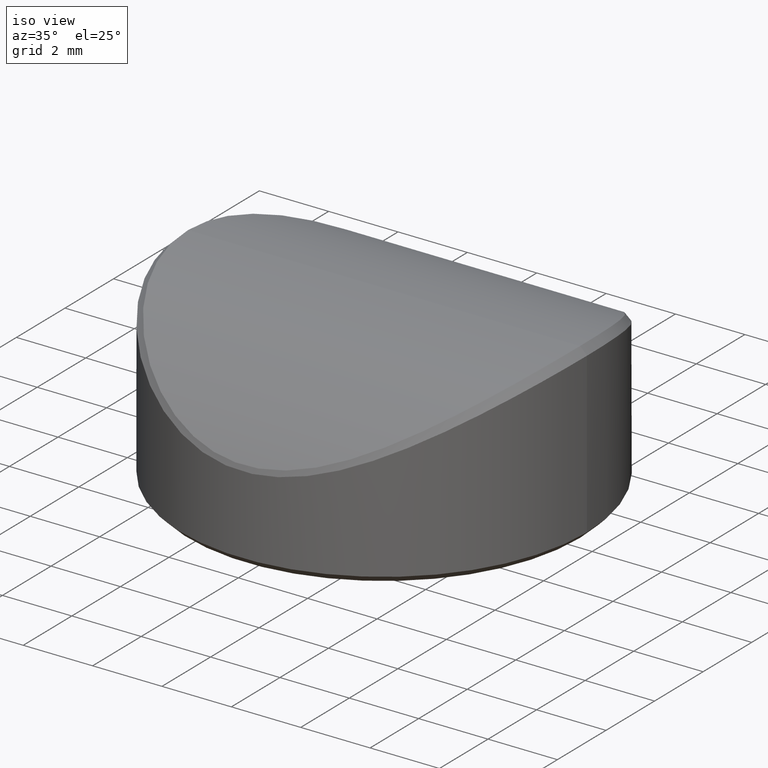
[diagram: clean part render]
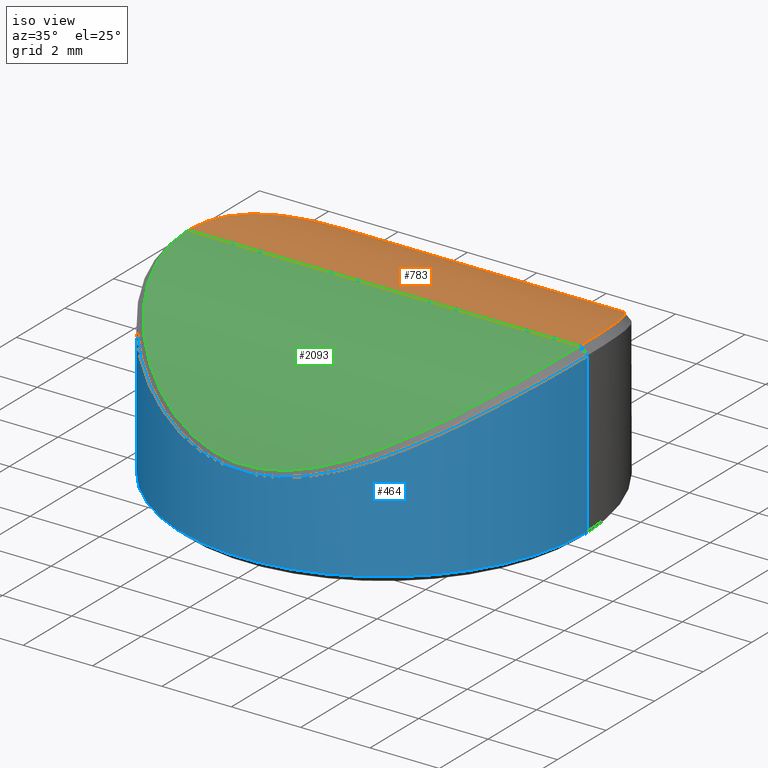
[diagram: same view with three faces highlighted in distinct colors, each labeled with its STEP entity id]
A machine part, iso view with three faces highlighted in distinct colors.
Their STEP definitions:

[orange] entity #783 — the highlighted cylindrical surface (partial cylindrical patch) has radius 8.1858 mm, axis along (-1, 0, 0).
#1 = CARTESIAN_POINT ( 'NONE',  ( 5.649996173019852463, 0.006866486706179850477, 4.999997232829611171 ) ) ;
#5 = CARTESIAN_POINT ( 'NONE',  ( 2.959938949718549317, 4.934632530085642621, 3.345876798513125028 ) ) ;
#27 = CARTESIAN_POINT ( 'NONE',  ( 3.294421073696404800, 4.705981335949988242, 3.512365333441559656 ) ) ;
#36 = CARTESIAN_POINT ( 'NONE',  ( 5.649999535198922729, 0.002721735549251738141, 4.999999662302739623 ) ) ;
#41 = CARTESIAN_POINT ( 'NONE',  ( -4.563142828380190252, 3.416391168500950482, 4.253433202744028918 ) ) ;
#55 = CARTESIAN_POINT ( 'NONE',  ( -5.495053782359788919, 1.361258811421440118, 4.888358439856832938 ) ) ;
#68 = CARTESIAN_POINT ( 'NONE',  ( -2.534041628680796521, 5.176552667259932683, 3.155442372303915555 ) ) ;
#132 = CARTESIAN_POINT ( 'NONE',  ( 5.037738169115237419, 2.628831563378569935, 4.568369365675149396 ) ) ;
#139 = EDGE_CURVE ( 'NONE', #1710, #2135, #1422, .T. ) ;
#178 = CARTESIAN_POINT ( 'NONE',  ( -1.506686126869441145, 5.581988822366107605, 2.801604867305149682 ) ) ;
#181 = ORIENTED_EDGE ( 'NONE', *, *, #390, .T. ) ;
#194 = CARTESIAN_POINT ( 'NONE',  ( -1.098579910298393747, 5.681166764282801651, 2.707570037193654855 ) ) ;
#203 = CARTESIAN_POINT ( 'NONE',  ( 2.028640076937382908, 5.406148294771700336, 2.960967883142455737 ) ) ;
#214 = CARTESIAN_POINT ( 'NONE',  ( 3.073311414097717353, 4.860633863342401995, 3.400973434922908822 ) ) ;
#222 = DIRECTION ( 'NONE',  ( -1.000000000000000000, 0.000000000000000000, 0.000000000000000000 ) ) ;
#227 = CARTESIAN_POINT ( 'NONE',  ( 1.499024357883120384, 5.584774705162296016, 2.799069354337397453 ) ) ;
#241 = CARTESIAN_POINT ( 'NONE',  ( -5.159234873062490401, 2.362847413906482785, 4.652102821048239356 ) ) ;
#255 = CARTESIAN_POINT ( 'NONE',  ( -4.908182086785243925, 2.870282806302954626, 4.480794403417551308 ) ) ;
#265 = CARTESIAN_POINT ( 'NONE',  ( -4.226190995206087209, 3.848243635872140356, 4.040789415266945461 ) ) ;
#300 = CARTESIAN_POINT ( 'NONE',  ( 5.479776672489888867, 1.416821539015522546, 4.877455083702152194 ) ) ;
#313 = CARTESIAN_POINT ( 'NONE',  ( 5.228438931832250169, 2.197135572993018648, 4.700141201701762306 ) ) ;
#319 = CARTESIAN_POINT ( 'NONE',  ( 5.649999999509654813, -1.430433877363251500E-15, 4.999999999692656516 ) ) ;
#359 = CARTESIAN_POINT ( 'NONE',  ( -0.1965669161501562012, 5.791298180636295534, 2.599366546559666258 ) ) ;
#372 = CARTESIAN_POINT ( 'NONE',  ( 1.182741787098672726, 5.663398603656724539, 2.724647795748769585 ) ) ;
#384 = CARTESIAN_POINT ( 'NONE',  ( 2.767872272878903583, 5.049150052583300408, 3.257351372635915787 ) ) ;
#390 = EDGE_CURVE ( 'NONE', #1350, #1710, #1022, .T. ) ;
#397 = CARTESIAN_POINT ( 'NONE',  ( 4.859229456071765263, 2.956471107744594207, 4.447940808222512032 ) ) ;
#411 = CARTESIAN_POINT ( 'NONE',  ( 4.712230307022413633, 3.196670409206264107, 4.350478470515946938 ) ) ;
#423 = CARTESIAN_POINT ( 'NONE',  ( -5.361712162587253694, 1.828963239350879899, 4.793631956994133247 ) ) ;
#435 = CARTESIAN_POINT ( 'NONE',  ( -2.774483501980424816, 5.045946878703079896, 3.260034132456782974 ) ) ;
#448 = CARTESIAN_POINT ( 'NONE',  ( -3.004193931193282818, 4.905175313653581171, 3.367634630243410143 ) ) ;
#537 = CARTESIAN_POINT ( 'NONE',  ( 4.763219547681126542, 3.116314634613780221, 4.384094470982114800 ) ) ;
#547 = CARTESIAN_POINT ( 'NONE',  ( -1.990110316636560572, 5.420548185663980334, 2.948156283666594213 ) ) ;
#559 = CARTESIAN_POINT ( 'NONE',  ( -1.860798022047617239, 5.469206376370216560, 2.904927003662471474 ) ) ;
#572 = CARTESIAN_POINT ( 'NONE',  ( 0.1839550680527894111, 5.791697193540703559, 2.598967082688921959 ) ) ;
#584 = CARTESIAN_POINT ( 'NONE',  ( 2.609808376827460030, 5.137485246716700260, 3.187330707798564422 ) ) ;
#596 = CARTESIAN_POINT ( 'NONE',  ( -5.267410228169655539, 2.097124714243697063, 4.727351820486060952 ) ) ;
#607 = CARTESIAN_POINT ( 'NONE',  ( -5.650000097776532115, 0.3927719394238598505, 5.000000000000000888 ) ) ;
#617 = CARTESIAN_POINT ( 'NONE',  ( -2.163368508643475963, 5.350335643567461830, 3.009501836510934947 ) ) ;
#666 = CARTESIAN_POINT ( 'NONE',  ( 5.401244531232637591, 1.700222600844834009, 4.821617558552038219 ) ) ;
#708 = CARTESIAN_POINT ( 'NONE',  ( -0.9552037829335146002, 5.708346665456048186, 2.681244718707679553 ) ) ;
#716 = VECTOR ( 'NONE', #2197, 1000.000000000000000 ) ;
#722 = CARTESIAN_POINT ( 'NONE',  ( -1.644219679525181110, 5.541036491532474351, 2.839526579075042800 ) ) ;
#731 = CARTESIAN_POINT ( 'NONE',  ( 5.649999999509654813, -1.430433877363251500E-15, 4.999999999692656516 ) ) ;
#736 = CARTESIAN_POINT ( 'NONE',  ( 2.283886631643866849, 5.297296125871857164, 3.054880500802970023 ) ) ;
#749 = CARTESIAN_POINT ( 'NONE',  ( -1.461413207085216825, 5.594619742039023791, 2.789799676267267436 ) ) ;
#762 = CARTESIAN_POINT ( 'NONE',  ( 4.450409030311415215, 3.572712435574668444, 4.180870220721884856 ) ) ;
#776 = CARTESIAN_POINT ( 'NONE',  ( -4.614784184288736490, 3.342750052662882165, 4.286847826359128533 ) ) ;
#783 = ADVANCED_FACE ( 'NONE', ( #1820 ), #1297, .T. ) ;
#790 = CARTESIAN_POINT ( 'NONE',  ( -4.398932661323080140, 3.635656895065598082, 4.148750063761411866 ) ) ;
#804 = CARTESIAN_POINT ( 'NONE',  ( -3.723978907610514977, 4.370892510558475941, 3.741815752202982903 ) ) ;
#906 = CARTESIAN_POINT ( 'NONE',  ( 2.115271689405620936, 5.371166947348804399, 2.991601991472573108 ) ) ;
#918 = CARTESIAN_POINT ( 'NONE',  ( 3.437657214995903487, 4.597073710303025251, 3.587573869135040727 ) ) ;
#928 = CARTESIAN_POINT ( 'NONE',  ( 1.854744625023320159, 5.470758569155006690, 2.903412327270986637 ) ) ;
#940 = CARTESIAN_POINT ( 'NONE',  ( 2.242800134976429494, 5.315708254529181609, 3.039204809765963855 ) ) ;
#954 = CARTESIAN_POINT ( 'NONE',  ( -3.079856290777347905, 4.855618729622498186, 3.404436536092900756 ) ) ;
#967 = CARTESIAN_POINT ( 'NONE',  ( -4.454806916883435441, 3.563460433455271303, 4.184116416474971345 ) ) ;
#980 = CARTESIAN_POINT ( 'NONE',  ( -5.121234088997698386, 2.448135248464681002, 4.625858860653325522 ) ) ;
#1022 = B_SPLINE_CURVE_WITH_KNOTS ( 'NONE', 3,
 ( #731, #1875, #36, #1144, #1, #1665 ),
 .UNSPECIFIED., .F., .F.,
 ( 4, 2, 4 ),
 ( 0.4997844696044921875, 0.4998922348022460938, 0.5000000000000000000 ),
 .UNSPECIFIED. ) ;
#1024 = CARTESIAN_POINT ( 'NONE',  ( 5.441868902315700751, 1.558221444162001701, 4.850465435948228432 ) ) ;
#1083 = CARTESIAN_POINT ( 'NONE',  ( 3.508267204084488444, 4.540687404275008276, 3.625538085790460663 ) ) ;
#1096 = CARTESIAN_POINT ( 'NONE',  ( 3.846475039630178561, 4.243130141277387857, 3.814793503159663590 ) ) ;
#1110 = CARTESIAN_POINT ( 'NONE',  ( -0.6719240009691272997, 5.751225274042343294, 2.639222834871997492 ) ) ;
#1122 = CARTESIAN_POINT ( 'NONE',  ( 4.221674491251416583, 3.853377007995190784, 4.038020861009505857 ) ) ;
#1136 = CARTESIAN_POINT ( 'NONE',  ( 1.725396804512487670, 5.515058224511028229, 2.863316219112020722 ) ) ;
#1144 = CARTESIAN_POINT ( 'NONE',  ( 5.649997636085528185, 0.005463417165336185641, 4.999998291568933162 ) ) ;
#1150 = CARTESIAN_POINT ( 'NONE',  ( -2.493179164274575310, 5.197357617014445097, 3.138396241042568757 ) ) ;
#1174 = CARTESIAN_POINT ( 'NONE',  ( -3.447197660458837021, 4.602832841049509405, 3.587917313044720391 ) ) ;
#1208 = CARTESIAN_POINT ( 'NONE',  ( 5.609240405713441291, 0.7965503495934576073, 4.970299206671443315 ) ) ;
#1218 = CARTESIAN_POINT ( 'NONE',  ( 5.263774336406246590, 2.106689358253411193, 4.724809511567381826 ) ) ;
#1231 = CARTESIAN_POINT ( 'NONE',  ( 4.905304252590255487, 2.875405745711411054, 4.478859253043407485 ) ) ;
#1265 = CARTESIAN_POINT ( 'NONE',  ( 0.9474449447564073923, 5.712891200895650279, 2.677064363150671422 ) ) ;
#1276 = CARTESIAN_POINT ( 'NONE',  ( -2.033148299111568136, 5.403741844152429863, 2.962972244954654499 ) ) ;
#1289 = CARTESIAN_POINT ( 'NONE',  ( 3.911412308355492584, 4.180294900054634333, 3.852525596710284272 ) ) ;
#1297 = CYLINDRICAL_SURFACE ( 'NONE', #1674, 8.185792682926827268 ) ;
#1299 = CARTESIAN_POINT ( 'NONE',  ( 4.102428320338422196, 3.986446103199595914, 3.965277205579113229 ) ) ;
#1312 = CARTESIAN_POINT ( 'NONE',  ( 2.223209967781147878, 5.324352279310299529, 3.031813528220262732 ) ) ;
#1321 = CARTESIAN_POINT ( 'NONE',  ( -5.332172782546074963, 1.917459963393989053, 4.772796091960745279 ) ) ;
#1335 = CARTESIAN_POINT ( 'NONE',  ( -4.997573339756211652, 2.703359133368292699, 4.541233286791081625 ) ) ;
#1347 = CARTESIAN_POINT ( 'NONE',  ( -2.370227903508232981, 5.258074066385649559, 3.088170860927138772 ) ) ;
#1350 = VERTEX_POINT ( 'NONE', #319 ) ;
#1388 = CARTESIAN_POINT ( 'NONE',  ( 5.649994302125649348, 0.008225044492211699282, 4.999995867756699575 ) ) ;
#1398 = CARTESIAN_POINT ( 'NONE',  ( 5.359098958901085119, 1.836877352407754849, 4.791787070337501397 ) ) ;
#1422 = B_SPLINE_CURVE_WITH_KNOTS ( 'NONE', 3,
 ( #1388, #2127, #1208, #1941, #300, #1024, #1757, #666, #1398, #2138, #1218, #313, #1768, #132, #1231, #397, #537, #411, #2202, #762, #1122, #1299, #1289, #1096, #1644, #1633, #1083, #918, #27, #1668, #214, #5, #1494, #384, #1839, #584, #2038, #1865, #1851, #736, #940, #1312, #906, #203, #2229, #928, #2052, #1136, #1479, #227, #2026, #1657, #1468, #372, #1265, #2214, #2190, #572, #359, #1621, #1110, #2002, #2355, #708, #1824, #194, #1442, #1811, #749, #178, #2369, #722, #1454, #559, #547, #1276, #2015, #617, #1707, #1347, #1150, #68, #2087, #1894, #435, #1906, #448, #954, #1681, #1174, #804, #2252, #265, #790, #967, #41, #776, #2063, #1506, #1534, #255, #1335, #1881, #980, #241, #2240, #596, #1321, #423, #1694, #55, #1519, #607, #2076 ),
 .UNSPECIFIED., .F., .F.,
 ( 4, 2, 1, 2, 2, 2, 2, 2, 2, 2, 2, 2, 2, 2, 2, 2, 1, 2, 2, 2, 1, 2, 2, 2, 2, 2, 2, 2, 2, 2, 2, 2, 2, 2, 2, 2, 2, 2, 2, 2, 2, 2, 2, 2, 1, 2, 2, 2, 2, 2, 2, 2, 2, 2, 2, 2, 2, 2, 4 ),
 ( 0.5000000000000000000, 0.5312500000000001110, 0.5390625000000001110, 0.5429687500000001110, 0.5468750000000001110, 0.5546875000000001110, 0.5625000000000000000, 0.5781250000000000000, 0.5859375000000000000, 0.5937499999999998890, 0.6093749999999998890, 0.6249999999999997780, 0.6328124999999997780, 0.6406249999999996669, 0.6484374999999996669, 0.6562499999999995559, 0.6640624999999995559, 0.6679687499999995559, 0.6718749999999995559, 0.6796874999999996669, 0.6835937499999995559, 0.6855468749999995559, 0.6874999999999995559, 0.6953124999999995559, 0.6992187499999996669, 0.7031249999999996669, 0.7109374999999996669, 0.7148437499999997780, 0.7187499999999997780, 0.7343749999999997780, 0.7499999999999997780, 0.7656249999999998890, 0.7734374999999998890, 0.7773437499999998890, 0.7812500000000000000, 0.7890625000000000000, 0.7929687500000000000, 0.7968750000000000000, 0.8046875000000000000, 0.8085937500000000000, 0.8125000000000000000, 0.8203125000000000000, 0.8242187500000000000, 0.8281250000000000000, 0.8359375000000000000, 0.8398437500000000000, 0.8437500000000000000, 0.8750000000000000000, 0.8906249999999998890, 0.8984375000000000000, 0.9062500000000000000, 0.9140625000000000000, 0.9218750000000000000, 0.9296875000000000000, 0.9375000000000000000, 0.9453125000000000000, 0.9531250000000001110, 0.9687500000000000000, 1.000000000000000000 ),
 .UNSPECIFIED. ) ;
#1442 = CARTESIAN_POINT ( 'NONE',  ( -1.234804881221707840, 5.652296909160115845, 2.735309741885084023 ) ) ;
#1454 = CARTESIAN_POINT ( 'NONE',  ( -1.774325362769775927, 5.499297961189520301, 2.877733257370830966 ) ) ;
#1468 = CARTESIAN_POINT ( 'NONE',  ( 1.226639820958965288, 5.653566981409102965, 2.734055531245307868 ) ) ;
#1479 = CARTESIAN_POINT ( 'NONE',  ( 1.589646487044178436, 5.558399208058787622, 2.823611248759383408 ) ) ;
#1494 = CARTESIAN_POINT ( 'NONE',  ( 2.844918654405892866, 5.003955616701688314, 3.292513404339741712 ) ) ;
#1506 = CARTESIAN_POINT ( 'NONE',  ( -4.767599814071897590, 3.109260537603314667, 4.386992189236970319 ) ) ;
#1519 = CARTESIAN_POINT ( 'NONE',  ( -5.611020889564486858, 0.7844281498088578886, 4.971586464513657155 ) ) ;
#1534 = CARTESIAN_POINT ( 'NONE',  ( -4.863105771681799361, 2.949754981589081559, 4.450536105133604536 ) ) ;
#1537 = EDGE_LOOP ( 'NONE', ( #2267, #181, #1951 ) ) ;
#1621 = CARTESIAN_POINT ( 'NONE',  ( -0.3885331823604512569, 5.781068596293422956, 2.609656573420511272 ) ) ;
#1633 = CARTESIAN_POINT ( 'NONE',  ( 3.647471019139307824, 4.423935191786042331, 3.701940352193913153 ) ) ;
#1644 = CARTESIAN_POINT ( 'NONE',  ( 3.714069972717543688, 4.365314621495971714, 3.739262450427358608 ) ) ;
#1650 = CARTESIAN_POINT ( 'NONE',  ( 40.00000000000000000, 4.336808689942017736E-16, 5.000000000000000888 ) ) ;
#1657 = CARTESIAN_POINT ( 'NONE',  ( 1.317505785151069198, 5.632045275637342030, 2.754534623315425090 ) ) ;
#1665 = CARTESIAN_POINT ( 'NONE',  ( 5.649994302125649348, 0.008225044492211699282, 4.999995867756699575 ) ) ;
#1668 = CARTESIAN_POINT ( 'NONE',  ( 3.223009961329065032, 4.757666972994154975, 3.475727745534290758 ) ) ;
#1674 = AXIS2_PLACEMENT_3D ( 'NONE', #2236, #222, #1859 ) ;
#1681 = CARTESIAN_POINT ( 'NONE',  ( -3.118446020245593697, 4.829659735107387775, 3.423485468425686573 ) ) ;
#1694 = CARTESIAN_POINT ( 'NONE',  ( -5.447524943216409454, 1.548946311718688795, 4.854384941985220081 ) ) ;
#1707 = CARTESIAN_POINT ( 'NONE',  ( -2.287775239600460697, 5.296287487222483215, 3.055905486220048761 ) ) ;
#1710 = VERTEX_POINT ( 'NONE', #1845 ) ;
#1733 = EDGE_CURVE ( 'NONE', #1350, #2135, #2376, .T. ) ;
#1757 = CARTESIAN_POINT ( 'NONE',  ( 5.415417283639199830, 1.652209814672591426, 4.831669593288204112 ) ) ;
#1768 = CARTESIAN_POINT ( 'NONE',  ( 5.119522249334758968, 2.457310434240666197, 4.624549929377425705 ) ) ;
#1811 = CARTESIAN_POINT ( 'NONE',  ( -1.325513205418416440, 5.630686408895590134, 2.755895749344737578 ) ) ;
#1820 = FACE_OUTER_BOUND ( 'NONE', #1537, .T. ) ;
#1824 = CARTESIAN_POINT ( 'NONE',  ( -1.049603939625384008, 5.690901667151242904, 2.698167525981503001 ) ) ;
#1839 = CARTESIAN_POINT ( 'NONE',  ( 2.730510733147396341, 5.070490410480672949, 3.240570401005487877 ) ) ;
#1845 = CARTESIAN_POINT ( 'NONE',  ( 5.649994302125649348, 0.008225044492211699282, 4.999995867756699575 ) ) ;
#1851 = CARTESIAN_POINT ( 'NONE',  ( 2.345425050442076831, 5.269271517389708670, 3.078634491854980837 ) ) ;
#1859 = DIRECTION ( 'NONE',  ( 0.000000000000000000, 0.000000000000000000, 1.000000000000000000 ) ) ;
#1865 = CARTESIAN_POINT ( 'NONE',  ( 2.406689490631471529, 5.240016419317651497, 3.103094976329009658 ) ) ;
#1875 = CARTESIAN_POINT ( 'NONE',  ( 5.650000006473463010, 0.001357543372489800190, 5.000000000000000888 ) ) ;
#1881 = CARTESIAN_POINT ( 'NONE',  ( -5.040183740198700413, 2.618918155819805360, 4.570271636443583141 ) ) ;
#1894 = CARTESIAN_POINT ( 'NONE',  ( -2.657721942051534114, 5.110951534947669295, 3.208434526241047191 ) ) ;
#1906 = CARTESIAN_POINT ( 'NONE',  ( -2.890155721725059301, 4.977913958564240460, 3.312964719141718195 ) ) ;
#1941 = CARTESIAN_POINT ( 'NONE',  ( 5.512375469142351214, 1.274229591490905422, 4.900792575464020473 ) ) ;
#1951 = ORIENTED_EDGE ( 'NONE', *, *, #139, .T. ) ;
#2002 = CARTESIAN_POINT ( 'NONE',  ( -0.7663664573350099651, 5.738814324288018298, 2.651471024158077672 ) ) ;
#2015 = CARTESIAN_POINT ( 'NONE',  ( -2.119092032618979271, 5.368933328190585108, 2.993389380585595561 ) ) ;
#2026 = CARTESIAN_POINT ( 'NONE',  ( 1.362908287868246582, 5.620684464021909577, 2.765289409426068712 ) ) ;
#2038 = CARTESIAN_POINT ( 'NONE',  ( 2.528853066198477162, 5.179834753866304098, 3.152915911171772834 ) ) ;
#2052 = CARTESIAN_POINT ( 'NONE',  ( 1.767551033019450157, 5.501003118969976846, 2.876103197347235962 ) ) ;
#2063 = CARTESIAN_POINT ( 'NONE',  ( -4.717935496593285372, 3.187864811105847185, 4.354224030696042469 ) ) ;
#2076 = CARTESIAN_POINT ( 'NONE',  ( -5.649999999999995026, -5.687896117688145790E-16, 5.000000000000002665 ) ) ;
#2087 = CARTESIAN_POINT ( 'NONE',  ( -2.615523979128140830, 5.133788908823199826, 3.190112819999564753 ) ) ;
#2127 = CARTESIAN_POINT ( 'NONE',  ( 5.649451775919930085, 0.4021827571702626947, 4.999600020772041908 ) ) ;
#2135 = VERTEX_POINT ( 'NONE', #2362 ) ;
#2138 = CARTESIAN_POINT ( 'NONE',  ( 5.328795215113704131, 1.927298694780969379, 4.770417902069668870 ) ) ;
#2190 = CARTESIAN_POINT ( 'NONE',  ( 0.3764842690645318624, 5.782012191892574648, 2.608715205060722742 ) ) ;
#2197 = DIRECTION ( 'NONE',  ( -1.000000000000000000, 0.000000000000000000, 0.000000000000000000 ) ) ;
#2202 = CARTESIAN_POINT ( 'NONE',  ( 4.559796884735167311, 3.424800492790700979, 4.250972370121430366 ) ) ;
#2214 = CARTESIAN_POINT ( 'NONE',  ( 0.7604168500496126804, 5.742215983871933993, 2.648154715337064147 ) ) ;
#2229 = CARTESIAN_POINT ( 'NONE',  ( 1.898271173583305993, 5.455052118850436393, 2.917492004594394839 ) ) ;
#2236 = CARTESIAN_POINT ( 'NONE',  ( 40.00000000000000000, 4.336808689942017736E-16, -3.185792682926825936 ) ) ;
#2240 = CARTESIAN_POINT ( 'NONE',  ( -5.232822646272939693, 2.186218731686233152, 4.703193404642434849 ) ) ;
#2252 = CARTESIAN_POINT ( 'NONE',  ( -4.105222615981144685, 3.983414576646508554, 3.966963756991172652 ) ) ;
#2267 = ORIENTED_EDGE ( 'NONE', *, *, #1733, .F. ) ;
#2355 = CARTESIAN_POINT ( 'NONE',  ( -0.9079984171283207450, 5.716434244125315978, 2.673361716571554414 ) ) ;
#2362 = CARTESIAN_POINT ( 'NONE',  ( -5.649999999999995026, -5.687896117688145790E-16, 5.000000000000002665 ) ) ;
#2369 = CARTESIAN_POINT ( 'NONE',  ( -1.597177804895139941, 5.555489630534117929, 2.826200630656607871 ) ) ;
#2376 = LINE ( 'NONE', #1650, #716 ) ;

[blue] entity #464 — the highlighted cylindrical surface (partial cylindrical patch) has radius 5.85 mm, axis along (-0, -0, -1).
#9 = CARTESIAN_POINT ( 'NONE',  ( -1.375727725849500871, -5.686148180710914879, 2.611947779758022836 ) ) ;
#13 = CARTESIAN_POINT ( 'NONE',  ( 5.301967544099882801, -2.474036929210759350, 4.434640069222560044 ) ) ;
#19 = CARTESIAN_POINT ( 'NONE',  ( 2.679306735442938958, -5.200730913605227101, 3.022612934130709306 ) ) ;
#24 = CARTESIAN_POINT ( 'NONE',  ( 5.808834222437207373, -0.6997591344599952690, 4.771917544864654026 ) ) ;
#32 = CARTESIAN_POINT ( 'NONE',  ( 2.427241580465172355, -5.323046430306599852, 2.925132762376092987 ) ) ;
#34 = AXIS2_PLACEMENT_3D ( 'NONE', #1259, #1305, #1461 ) ;
#46 = CARTESIAN_POINT ( 'NONE',  ( 2.824514529974619492, -5.123000588333491478, 3.082524708902495192 ) ) ;
#52 = B_SPLINE_CURVE_WITH_KNOTS ( 'NONE', 3,
 ( #1146, #64, #223, #1877, #1309, #24, #1836, #1690, #1120, #1529, #1653, #557, #772, #925, #1286, #2024, #381, #581, #1132, #202, #759, #13, #1298, #746, #1476, #2035, #394, #1848, #1916, #1213, #1015, #1947, #273, #444, #1903, #1717, #2285, #1750, #625, #1368, #78, #1357, #111, #638, #1730, #2108, #467, #1194, #1007, #837, #2296, #649, #2336, #2141, #712, #499, #2348, #1222, #1052, #1447, #122, #888, #521, #1063, #171, #1247, #1040, #701, #1075, #1994, #135, #2325, #874, #1434, #1958, #1944, #1604, #316, #678, #1411, #2153, #510, #1970, #1235, #329, #689, #1424, #1980, #1793, #1615, #1315, #1471, #1855, #2195, #388, #46, #1843, #1870, #19, #363, #552, #922, #2055, #32, #1636, #2244, #2218, #1661, #183, #232, #910, #1672, #2374, #1114, #781, #2006, #1269, #1126, #1484, #2019, #959, #375, #766, #414, #2233, #1829, #1100, #207, #1497, #727, #1511, #932, #1141, #587, #1685, #1088, #1459, #1816, #1281, #198, #218, #1648, #9, #740, #576, #753, #2030, #2206, #563, #1293, #1303, #2042, #401, #944, #2091, #1698, #2257, #292, #2279, #246, #1189, #644, #1559, #2269, #2115, #1724, #821, #1932, #279, #843, #93, #1352, #1002, #1736, #1340, #810, #795, #611, #473, #1199, #427, #1377, #266, #632, #450, #1712, #1155, #1922, #1899, #832, #60, #1012, #82, #972, #2291, #1745, #104, #620, #1177, #1569, #985, #1886, #440, #1524, #1549, #1909, #600, #1326, #72, #2067, #1539, #993, #1362, #2102, #460, #871, #326, #675, #119, #338, #1589, #2344, #2333, #1789, #1779, #1601, #1408, #2150, #1976, #863, #1955, #697, #1430, #884, #2322, #2170, #1049, #144, #1255, #1059, #166, #2313, #1071, #1612, #1989, #1579, #686, #156, #1420, #527, #349, #2161, #1800, #1967, #517, #507, #1037, #483, #1243, #496, #895, #2302, #655, #855 ),
 .UNSPECIFIED., .F., .F.,
 ( 4, 2, 2, 1, 2, 2, 1, 2, 2, 1, 2, 2, 2, 1, 2, 2, 2, 2, 2, 2, 1, 2, 2, 1, 2, 2, 1, 2, 2, 1, 1, 2, 2, 2, 1, 2, 2, 1, 2, 2, 1, 2, 2, 2, 1, 2, 2, 2, 1, 2, 2, 1, 2, 2, 1, 2, 2, 1, 2, 2, 1, 2, 2, 1, 2, 2, 2, 2, 2, 2, 2, 2, 2, 2, 2, 2, 2, 2, 2, 2, 2, 2, 1, 2, 2, 1, 2, 2, 1, 2, 2, 1, 2, 2, 1, 2, 2, 1, 1, 2, 2, 1, 1, 2, 2, 2, 1, 1, 2, 2, 2, 1, 2, 2, 2, 1, 2, 2, 2, 1, 2, 2, 1, 1, 2, 2, 1, 2, 2, 1, 2, 2, 1, 2, 2, 2, 2, 1, 2, 2, 2, 1, 2, 2, 1, 2, 2, 1, 2, 2, 2, 2, 4 ),
 ( 0.5002157163491369740, 0.5080248457811816776, 0.5158339752132263811, 0.5236431046452710847, 0.5275476693612934920, 0.5314522340773157882, 0.5392613635093604918, 0.5431659282253827881, 0.5470704929414051954, 0.5548796223734498989, 0.5587841870894723062, 0.5626887518054946025, 0.5704978812375394170, 0.5744024459535617133, 0.5763547283115728614, 0.5783070106695840096, 0.5822115753856064169, 0.5861161401016288242, 0.5900207048176511204, 0.5939252695336735277, 0.5978298342496959350, 0.5997821166077070831, 0.6017343989657181202, 0.6056389636817404165, 0.6075912460397515646, 0.6095435283977627128, 0.6134480931137850090, 0.6154003754717960462, 0.6173526578298071943, 0.6212572225458294906, 0.6232095049038406387, 0.6241856460828461017, 0.6251617872618516758, 0.6290663519778740831, 0.6310186343358853422, 0.6319947755148909163, 0.6329709166938966014, 0.6349231990519079716, 0.6358993402309135456, 0.6368754814099192307, 0.6388277637679304899, 0.6398039049469361750, 0.6407800461259418601, 0.6446846108419646004, 0.6466368931999758596, 0.6476130343789815447, 0.6485891755579871187, 0.6524937402740095260, 0.6544460226320207852, 0.6554221638110262482, 0.6563983049900319333, 0.6603028697060543406, 0.6622551520640654887, 0.6642074344220767479, 0.6681119991380991552, 0.6700642814961103033, 0.6720165638541215625, 0.6759211285701438587, 0.6778734109281552289, 0.6798256932861663770, 0.6837302580021887843, 0.6856825403602000435, 0.6876348227182113027, 0.6915393874342337099, 0.6934916697922449691, 0.6954439521502562283, 0.6993485168662786355, 0.7032530815823010428, 0.7071576462983235611, 0.7110622110143460795, 0.7149667757303684867, 0.7188713404463908940, 0.7344895993104807452, 0.7422987287425257819, 0.7501078581745705964, 0.7579169876066156331, 0.7657261170386604476, 0.7735352464707054843, 0.7774398111867278915, 0.7813443759027502988, 0.7852489406187728171, 0.7891535053347953355, 0.7930580700508177427, 0.7950103524088290019, 0.7969626347668401500, 0.8008671994828626683, 0.8028194818408738165, 0.8047717641988851867, 0.8086763289149074829, 0.8106286112729186311, 0.8125808936309297792, 0.8164854583469521865, 0.8184377407049632236, 0.8203900230629743717, 0.8242945877789966680, 0.8262468701370078161, 0.8281991524950189643, 0.8321037172110412605, 0.8340559995690524087, 0.8350321407480578717, 0.8360082819270634458, 0.8399128466430856310, 0.8418651290010966681, 0.8428412701801022422, 0.8438174113591077052, 0.8477219760751297795, 0.8496742584331407055, 0.8506503996121461686, 0.8511384702016489001, 0.8516265407911516316, 0.8555311055071737059, 0.8574833878651847430, 0.8584595290441903170, 0.8594356702231957801, 0.8633402349392179653, 0.8652925172972290024, 0.8662686584762345765, 0.8672447996552401506, 0.8711493643712624468, 0.8731016467292735950, 0.8740777879082792801, 0.8750539290872847431, 0.8789584938033071504, 0.8809107761613184095, 0.8818869173403239836, 0.8828630585193295577, 0.8867676232353519650, 0.8887199055933630021, 0.8906721879513742612, 0.8945767526673966685, 0.8965290350254078167, 0.8984813173834189648, 0.9023858820994412611, 0.9043381644574525202, 0.9062904468154636684, 0.9101950115314860756, 0.9140995762475083719, 0.9180041409635306682, 0.9199564233215419273, 0.9219087056795530755, 0.9297178351115977790, 0.9336223998276201863, 0.9355746821856314455, 0.9375269645436425936, 0.9453360939756872972, 0.9492406586917097044, 0.9531452234077320007, 0.9609543528397767043, 0.9648589175557991116, 0.9687634822718214078, 0.9765726117038660004, 0.9843817411359107039, 1.000000000000000000 ),
 .UNSPECIFIED. ) ;
#58 = VERTEX_POINT ( 'NONE', #418 ) ;
#60 = CARTESIAN_POINT ( 'NONE',  ( -3.556410194355744459, -4.645059234646698343, 3.420838466624991803 ) ) ;
#64 = CARTESIAN_POINT ( 'NONE',  ( 5.849999999999999645, -0.1002571511563858653, 4.800000362256402475 ) ) ;
#72 = CARTESIAN_POINT ( 'NONE',  ( -4.107473229965752815, -4.165485719102234086, 3.712599004116468482 ) ) ;
#78 = CARTESIAN_POINT ( 'NONE',  ( 4.639378622212648295, -3.563805010209286195, 4.020263025673698642 ) ) ;
#82 = CARTESIAN_POINT ( 'NONE',  ( -3.639745028704612917, -4.579947920136699047, 3.463069188902329731 ) ) ;
#93 = CARTESIAN_POINT ( 'NONE',  ( -2.890523004512240313, -5.086375630884480081, 3.110385060265684398 ) ) ;
#104 = CARTESIAN_POINT ( 'NONE',  ( -3.748179185102822331, -4.491743733964525198, 3.518997210770038464 ) ) ;
#106 = EDGE_CURVE ( 'NONE', #1139, #2358, #52, .T. ) ;
#110 = DIRECTION ( 'NONE',  ( -0.000000000000000000, -0.000000000000000000, -1.000000000000000000 ) ) ;
#111 = CARTESIAN_POINT ( 'NONE',  ( 4.552830597238083143, -3.673526891267133720, 3.968605949312683290 ) ) ;
#119 = CARTESIAN_POINT ( 'NONE',  ( -4.439991013877637727, -3.809133400976099981, 3.902145771208661795 ) ) ;
#122 = CARTESIAN_POINT ( 'NONE',  ( 3.952813807244624833, -4.312531056396609053, 3.627792238116910983 ) ) ;
#128 = ORIENTED_EDGE ( 'NONE', *, *, #106, .T. ) ;
#135 = CARTESIAN_POINT ( 'NONE',  ( 3.741974079025739641, -4.496694510488244312, 3.515825064143108580 ) ) ;
#144 = CARTESIAN_POINT ( 'NONE',  ( -5.082213750779416728, -2.897264853828552589, 4.293734159690635543 ) ) ;
#156 = CARTESIAN_POINT ( 'NONE',  ( -5.416322344660787103, -2.212644334234725729, 4.509305661737005089 ) ) ;
#166 = CARTESIAN_POINT ( 'NONE',  ( -5.174403619543121557, -2.730851951907253827, 4.352392773805803472 ) ) ;
#171 = CARTESIAN_POINT ( 'NONE',  ( 3.877755793451842958, -4.380236733356795753, 3.587418988817553167 ) ) ;
#183 = CARTESIAN_POINT ( 'NONE',  ( 2.167975040871612524, -5.433808327478917732, 2.833498008269742741 ) ) ;
#191 = AXIS2_PLACEMENT_3D ( 'NONE', #367, #757, #544 ) ;
#198 = CARTESIAN_POINT ( 'NONE',  ( -1.137834820810464054, -5.738481615359147803, 2.563645326624742093 ) ) ;
#202 = CARTESIAN_POINT ( 'NONE',  ( 5.396495626909007193, -2.258875895405461964, 4.496339688545263336 ) ) ;
#207 = CARTESIAN_POINT ( 'NONE',  ( 0.3966548629167477857, -5.837400858949691518, 2.469982700758960092 ) ) ;
#218 = CARTESIAN_POINT ( 'NONE',  ( -1.232561992315424959, -5.718883655431633350, 2.581830368348808857 ) ) ;
#223 = CARTESIAN_POINT ( 'NONE',  ( 5.847422123846107489, -0.2006309793526596663, 4.798235120699385625 ) ) ;
#232 = CARTESIAN_POINT ( 'NONE',  ( 2.102327943100051666, -5.459236307794311571, 2.811935416487588490 ) ) ;
#246 = CARTESIAN_POINT ( 'NONE',  ( -2.328082448233424362, -5.366991869323380904, 2.889128815765729552 ) ) ;
#266 = CARTESIAN_POINT ( 'NONE',  ( -3.340105268323252830, -4.802950666649356215, 3.314664332911195999 ) ) ;
#273 = CARTESIAN_POINT ( 'NONE',  ( 4.934590481693506447, -3.142375330642501297, 4.200932092971154219 ) ) ;
#279 = CARTESIAN_POINT ( 'NONE',  ( -2.772154596843895646, -5.151519540009843467, 3.060683043446253748 ) ) ;
#292 = CARTESIAN_POINT ( 'NONE',  ( -2.241841100422953925, -5.403445329773904682, 2.858879966528415029 ) ) ;
#304 = VECTOR ( 'NONE', #110, 1000.000000000000000 ) ;
#316 = CARTESIAN_POINT ( 'NONE',  ( 3.521471693895499744, -4.671384902367146097, 3.403417134204432593 ) ) ;
#326 = CARTESIAN_POINT ( 'NONE',  ( -4.347329935835133163, -3.914792109759390293, 3.848327056161865656 ) ) ;
#329 = CARTESIAN_POINT ( 'NONE',  ( 3.298595728573255226, -4.831343440728667282, 3.294933202768802971 ) ) ;
#338 = CARTESIAN_POINT ( 'NONE',  ( -4.469480234282167785, -3.774488562058038621, 3.919413545498664497 ) ) ;
#349 = CARTESIAN_POINT ( 'NONE',  ( -5.550978557919523659, -1.847016502807758087, 4.598339977894000619 ) ) ;
#363 = CARTESIAN_POINT ( 'NONE',  ( 2.617367399164080677, -5.231865061747649648, 2.998079070889961617 ) ) ;
#367 = CARTESIAN_POINT ( 'NONE',  ( 0.000000000000000000, 0.000000000000000000, 6.000000000000000000 ) ) ;
#375 = CARTESIAN_POINT ( 'NONE',  ( 1.367515282275408639, -5.688128429018814103, 2.610135173980763224 ) ) ;
#381 = CARTESIAN_POINT ( 'NONE',  ( 5.504899539683229648, -1.983714597653050360, 4.567694286595952669 ) ) ;
#388 = CARTESIAN_POINT ( 'NONE',  ( 2.864266221327193218, -5.100881920949268178, 3.099328813808565286 ) ) ;
#394 = CARTESIAN_POINT ( 'NONE',  ( 5.137118813583457566, -2.798758607100703788, 4.328640686332184018 ) ) ;
#401 = CARTESIAN_POINT ( 'NONE',  ( -1.977132171286536622, -5.505818000685767544, 2.772083576216765266 ) ) ;
#414 = CARTESIAN_POINT ( 'NONE',  ( 1.225546885975937750, -5.720401717542054065, 2.580427173097815885 ) ) ;
#418 = CARTESIAN_POINT ( 'NONE',  ( 5.849999999999999645, 7.164183775012015436E-16, 0.1999999999999979294 ) ) ;
#427 = CARTESIAN_POINT ( 'NONE',  ( -3.260710110521725102, -4.856992700369415772, 3.277023968335849968 ) ) ;
#440 = CARTESIAN_POINT ( 'NONE',  ( -3.912037245218193959, -4.349555484289218121, 3.605806457813484300 ) ) ;
#444 = CARTESIAN_POINT ( 'NONE',  ( 4.883499728104176540, -3.221201072000503096, 4.169191561503999388 ) ) ;
#450 = CARTESIAN_POINT ( 'NONE',  ( -3.425633979428553744, -4.742211372709652650, 3.356090304872790142 ) ) ;
#460 = CARTESIAN_POINT ( 'NONE',  ( -4.299648410902368489, -3.966817823464320103, 3.820980247737444824 ) ) ;
#464 = ADVANCED_FACE ( 'NONE', ( #2010 ), #1688, .T. ) ;
#467 = CARTESIAN_POINT ( 'NONE',  ( 4.419491621545344806, -3.833331453390139032, 3.890123458999872330 ) ) ;
#473 = CARTESIAN_POINT ( 'NONE',  ( -3.228876305644311717, -4.878217572511937661, 3.262097021227638560 ) ) ;
#483 = CARTESIAN_POINT ( 'NONE',  ( -5.748656655795993942, -1.088749524800747270, 4.731040675981645904 ) ) ;
#488 = LINE ( 'NONE', #1749, #304 ) ;
#496 = CARTESIAN_POINT ( 'NONE',  ( -5.796531678950812783, -0.7953114516704916648, 4.763537758150483192 ) ) ;
#499 = CARTESIAN_POINT ( 'NONE',  ( 4.123513641282251285, -4.149606723216765936, 3.721520050925323897 ) ) ;
#507 = CARTESIAN_POINT ( 'NONE',  ( -5.708168529799181101, -1.281284235677512262, 4.703672797007214967 ) ) ;
#510 = CARTESIAN_POINT ( 'NONE',  ( 3.409236548638389319, -4.754126541391376470, 3.348056513135837076 ) ) ;
#517 = CARTESIAN_POINT ( 'NONE',  ( -5.686019177371349542, -1.376249676385311371, 4.688737510718696377 ) ) ;
#521 = CARTESIAN_POINT ( 'NONE',  ( 3.923250182599852476, -4.339435699106750199, 3.611837497726043456 ) ) ;
#527 = CARTESIAN_POINT ( 'NONE',  ( -5.519724283022702238, -1.938421200754895768, 4.577578675871202485 ) ) ;
#544 = DIRECTION ( 'NONE',  ( -1.000000000000000000, 0.000000000000000000, 0.000000000000000000 ) ) ;
#552 = CARTESIAN_POINT ( 'NONE',  ( 2.576338343245371032, -5.252190482804902416, 2.981985799186111841 ) ) ;
#557 = CARTESIAN_POINT ( 'NONE',  ( 5.675008696903578453, -1.426005650508588296, 4.681293954273036739 ) ) ;
#563 = CARTESIAN_POINT ( 'NONE',  ( -1.729095836509281670, -5.588673808226450213, 2.699680739752085668 ) ) ;
#576 = CARTESIAN_POINT ( 'NONE',  ( -1.517888859498037091, -5.649848316236151469, 2.644958458974649318 ) ) ;
#581 = CARTESIAN_POINT ( 'NONE',  ( 5.452453125039382620, -2.120295788326579167, 4.533105349651840754 ) ) ;
#587 = CARTESIAN_POINT ( 'NONE',  ( -0.5045231134893006786, -5.829025009660327328, 2.478047214087420347 ) ) ;
#600 = CARTESIAN_POINT ( 'NONE',  ( -4.070020865524007547, -4.202169639958404090, 3.691843170774587346 ) ) ;
#611 = CARTESIAN_POINT ( 'NONE',  ( -3.198564019091887811, -4.898234687984161617, 3.247955905041528535 ) ) ;
#620 = CARTESIAN_POINT ( 'NONE',  ( -3.783343740571468050, -4.462165038798336703, 3.537392394961037745 ) ) ;
#625 = CARTESIAN_POINT ( 'NONE',  ( 4.695158031528607445, -3.489778437550924650, 4.053905353718022297 ) ) ;
#632 = CARTESIAN_POINT ( 'NONE',  ( -3.396736728243643810, -4.762899765524959861, 3.342037414817662810 ) ) ;
#638 = CARTESIAN_POINT ( 'NONE',  ( 4.522794386420454948, -3.710444340799858409, 3.950813599809951615 ) ) ;
#644 = CARTESIAN_POINT ( 'NONE',  ( -2.455994361583406782, -5.309534717498427092, 2.936016500328536782 ) ) ;
#649 = CARTESIAN_POINT ( 'NONE',  ( 4.233359827654147978, -4.037939633342206847, 3.783146922964075287 ) ) ;
#655 = CARTESIAN_POINT ( 'NONE',  ( -5.850000000000000533, -0.1997877693801048127, 4.799999979756344182 ) ) ;
#670 = DIRECTION ( 'NONE',  ( -0.000000000000000000, -0.000000000000000000, -1.000000000000000000 ) ) ;
#675 = CARTESIAN_POINT ( 'NONE',  ( -4.394929649479723643, -3.861458682871670156, 3.875841031338302933 ) ) ;
#678 = CARTESIAN_POINT ( 'NONE',  ( 3.505496876386727134, -4.683384614422977599, 3.395466579526613238 ) ) ;
#686 = CARTESIAN_POINT ( 'NONE',  ( -5.367483781018553834, -2.326635559922540342, 4.477364926142710644 ) ) ;
#689 = CARTESIAN_POINT ( 'NONE',  ( 3.280998405336094770, -4.843311128454959480, 3.286594779189646598 ) ) ;
#691 = CARTESIAN_POINT ( 'NONE',  ( 5.849999999999999645, 7.164183775012015436E-16, 6.000000000000000000 ) ) ;
#697 = CARTESIAN_POINT ( 'NONE',  ( -4.860984194753509513, -3.255088112927814858, 4.155263327361565118 ) ) ;
#701 = CARTESIAN_POINT ( 'NONE',  ( 3.820727188305570898, -4.429974636642813657, 3.557143334641050814 ) ) ;
#712 = CARTESIAN_POINT ( 'NONE',  ( 4.133062493701041618, -4.140101819868605482, 3.726840288246605848 ) ) ;
#727 = CARTESIAN_POINT ( 'NONE',  ( 0.09567323066587260505, -5.850073527610214263, 2.457751346386143787 ) ) ;
#740 = CARTESIAN_POINT ( 'NONE',  ( -1.425612163881701200, -5.673834906344850104, 2.623191575941743015 ) ) ;
#746 = CARTESIAN_POINT ( 'NONE',  ( 5.206414122685895762, -2.668313953235640135, 4.372966314802951615 ) ) ;
#753 = CARTESIAN_POINT ( 'NONE',  ( -1.587494438388834084, -5.630851806157936679, 2.662101222322077465 ) ) ;
#757 = DIRECTION ( 'NONE',  ( -0.000000000000000000, -0.000000000000000000, -1.000000000000000000 ) ) ;
#759 = CARTESIAN_POINT ( 'NONE',  ( 5.341312712534691087, -2.387806515462018275, 4.460247327823969599 ) ) ;
#766 = CARTESIAN_POINT ( 'NONE',  ( 1.272000520493032028, -5.710246732684525206, 2.589812380817591464 ) ) ;
#772 = CARTESIAN_POINT ( 'NONE',  ( 5.636241397043481705, -1.567703619059801268, 4.655283694456312737 ) ) ;
#781 = CARTESIAN_POINT ( 'NONE',  ( 1.833404317679922624, -5.555484692172631966, 2.728945572657479612 ) ) ;
#795 = CARTESIAN_POINT ( 'NONE',  ( -3.129048665457919487, -4.943215683026599194, 3.215877473504308970 ) ) ;
#803 = VECTOR ( 'NONE', #670, 1000.000000000000000 ) ;
#810 = CARTESIAN_POINT ( 'NONE',  ( -3.071625018556679798, -4.978907384416322301, 3.189954542867317056 ) ) ;
#821 = CARTESIAN_POINT ( 'NONE',  ( -2.707322139699728236, -5.185891748810771418, 3.034098692953186571 ) ) ;
#832 = CARTESIAN_POINT ( 'NONE',  ( -3.523757843447768767, -4.669786984843736555, 3.404517442143560668 ) ) ;
#837 = CARTESIAN_POINT ( 'NONE',  ( 4.322983038555126889, -3.941418766975174570, 3.834353924872196728 ) ) ;
#843 = CARTESIAN_POINT ( 'NONE',  ( -2.830790977554333399, -5.119677837620342231, 3.085095935959836222 ) ) ;
#855 = CARTESIAN_POINT ( 'NONE',  ( -5.850000000000002309, 3.388131789017201356E-18, 4.800000000000000711 ) ) ;
#863 = CARTESIAN_POINT ( 'NONE',  ( -4.808434197088144124, -3.331964481760882446, 4.122929742330821767 ) ) ;
#871 = CARTESIAN_POINT ( 'NONE',  ( -4.306191443555581699, -3.959717626113174127, 3.824726946122569693 ) ) ;
#874 = CARTESIAN_POINT ( 'NONE',  ( 3.716192917813346153, -4.518029121563750472, 3.502426541324719089 ) ) ;
#884 = CARTESIAN_POINT ( 'NONE',  ( -4.937673144542126025, -3.137524156755700844, 4.202853648419028865 ) ) ;
#888 = CARTESIAN_POINT ( 'NONE',  ( 3.934062802818604432, -4.329643284452893148, 3.617662288736082310 ) ) ;
#895 = CARTESIAN_POINT ( 'NONE',  ( -5.808910245728824862, -0.6993752138742599378, 4.771968370964469131 ) ) ;
#910 = CARTESIAN_POINT ( 'NONE',  ( 2.058736348260596039, -5.475824001283239539, 2.797813271842366500 ) ) ;
#922 = CARTESIAN_POINT ( 'NONE',  ( 2.557134362406500827, -5.261572566073202672, 2.974522742573145084 ) ) ;
#925 = CARTESIAN_POINT ( 'NONE',  ( 5.609127950535561347, -1.662105699852025165, 4.637128514996904372 ) ) ;
#932 = CARTESIAN_POINT ( 'NONE',  ( -0.2062770414832285348, -5.847197120422482186, 2.460535617205513947 ) ) ;
#944 = CARTESIAN_POINT ( 'NONE',  ( -2.001087103913146148, -5.497152100374202099, 2.779542567099352546 ) ) ;
#959 = CARTESIAN_POINT ( 'NONE',  ( 1.415459859564481171, -5.676393444962814172, 2.620860713784469720 ) ) ;
#970 = ORIENTED_EDGE ( 'NONE', *, *, #1481, .T. ) ;
#971 = CARTESIAN_POINT ( 'NONE',  ( -5.850000000000002309, 3.388131789017201356E-18, 4.800000000000000711 ) ) ;
#972 = CARTESIAN_POINT ( 'NONE',  ( -3.670503711437805183, -4.555226027015714330, 3.478851082602479217 ) ) ;
#985 = CARTESIAN_POINT ( 'NONE',  ( -3.887244112838952326, -4.371723371658347901, 3.592516539843042533 ) ) ;
#993 = CARTESIAN_POINT ( 'NONE',  ( -4.207455083036200527, -4.064913791071526283, 3.768500926078461877 ) ) ;
#1002 = CARTESIAN_POINT ( 'NONE',  ( -2.993001208925106571, -5.026389350127540290, 3.155052767178201378 ) ) ;
#1007 = CARTESIAN_POINT ( 'NONE',  ( 4.340670227026338424, -3.921944976311046105, 3.844524961262904217 ) ) ;
#1012 = CARTESIAN_POINT ( 'NONE',  ( -3.611027836787306100, -4.602554741979793640, 3.448467670315207290 ) ) ;
#1015 = CARTESIAN_POINT ( 'NONE',  ( 5.007512123774266577, -3.024803031562292244, 4.246571018120217644 ) ) ;
#1030 = CARTESIAN_POINT ( 'NONE',  ( -5.849999999999999645, 0.000000000000000000, 0.1999999999999979294 ) ) ;
#1037 = CARTESIAN_POINT ( 'NONE',  ( -5.718346490852482589, -1.235109561557387492, 4.710546748848868148 ) ) ;
#1040 = CARTESIAN_POINT ( 'NONE',  ( 3.831455995255485636, -4.420701682934383925, 3.562818767076923798 ) ) ;
#1049 = CARTESIAN_POINT ( 'NONE',  ( -5.047415945530768333, -2.958027777213465548, 4.271692315523175409 ) ) ;
#1052 = CARTESIAN_POINT ( 'NONE',  ( 4.006566576517870182, -4.262682047202536850, 3.657004758089502872 ) ) ;
#1059 = CARTESIAN_POINT ( 'NONE',  ( -5.115733834783660505, -2.837668304563308652, 4.315019396862776802 ) ) ;
#1063 = CARTESIAN_POINT ( 'NONE',  ( 3.901621395178357599, -4.358925006982104833, 3.600207988405920378 ) ) ;
#1071 = CARTESIAN_POINT ( 'NONE',  ( -5.280995664432168724, -2.517110066496965892, 4.421089239478230404 ) ) ;
#1075 = CARTESIAN_POINT ( 'NONE',  ( 3.794629080998622950, -4.452394440372919426, 3.543372001968582818 ) ) ;
#1085 = EDGE_CURVE ( 'NONE', #1139, #58, #1248, .T. ) ;
#1088 = CARTESIAN_POINT ( 'NONE',  ( -0.7992147437466824433, -5.795963841222624424, 2.509626842431964988 ) ) ;
#1100 = CARTESIAN_POINT ( 'NONE',  ( 0.4942387123048823105, -5.829937701203170342, 2.477169840549702240 ) ) ;
#1114 = CARTESIAN_POINT ( 'NONE',  ( 1.923875645503112741, -5.524806246167536905, 2.755689240419583186 ) ) ;
#1120 = CARTESIAN_POINT ( 'NONE',  ( 5.747376961995175115, -1.092079822584934190, 4.730182018415757028 ) ) ;
#1126 = CARTESIAN_POINT ( 'NONE',  ( 1.649605844348987382, -5.612811455699461938, 2.678235138566081197 ) ) ;
#1132 = CARTESIAN_POINT ( 'NONE',  ( 5.416184146284840573, -2.211300206729046813, 4.509252412193499815 ) ) ;
#1139 = VERTEX_POINT ( 'NONE', #1606 ) ;
#1141 = CARTESIAN_POINT ( 'NONE',  ( -0.4036381152295039909, -5.836894778463459943, 2.470468696729681390 ) ) ;
#1146 = CARTESIAN_POINT ( 'NONE',  ( 5.849999999768836112, 1.100001536417089305E-14, 4.800000018381221700 ) ) ;
#1155 = CARTESIAN_POINT ( 'NONE',  ( -3.475405370232810043, -4.705751476287893809, 3.380565041965954087 ) ) ;
#1177 = CARTESIAN_POINT ( 'NONE',  ( -3.835505972196564972, -4.417229970291717045, 3.564958798754494840 ) ) ;
#1189 = CARTESIAN_POINT ( 'NONE',  ( -2.391569149724247723, -5.339172767904159400, 2.911998154341806089 ) ) ;
#1194 = CARTESIAN_POINT ( 'NONE',  ( 4.372548721756500001, -3.886372099126635504, 3.862927374747653797 ) ) ;
#1199 = CARTESIAN_POINT ( 'NONE',  ( -3.249197741769895842, -4.864705840725925157, 3.271611813564126781 ) ) ;
#1205 = VERTEX_POINT ( 'NONE', #1030 ) ;
#1213 = CARTESIAN_POINT ( 'NONE',  ( 5.032943372037465224, -2.982317061806385450, 4.262577148965410068 ) ) ;
#1216 = ORIENTED_EDGE ( 'NONE', *, *, #1085, .F. ) ;
#1222 = CARTESIAN_POINT ( 'NONE',  ( 4.056891555300922825, -4.215004955985200752, 3.684569018624221926 ) ) ;
#1235 = CARTESIAN_POINT ( 'NONE',  ( 3.325294673569076487, -4.813080524808381000, 3.307622765719427260 ) ) ;
#1243 = CARTESIAN_POINT ( 'NONE',  ( -5.766303994399804900, -0.9909783319565510507, 4.743005139650823487 ) ) ;
#1247 = CARTESIAN_POINT ( 'NONE',  ( 3.850442641268848831, -4.404174142716962059, 3.572890753826824639 ) ) ;
#1248 = LINE ( 'NONE', #691, #803 ) ;
#1255 = CARTESIAN_POINT ( 'NONE',  ( -5.105075642244345957, -2.856788919189696685, 4.308242937719620969 ) ) ;
#1259 = CARTESIAN_POINT ( 'NONE',  ( 0.000000000000000000, 0.000000000000000000, 0.1999999999999979294 ) ) ;
#1269 = CARTESIAN_POINT ( 'NONE',  ( 1.696475671454375611, -5.598830458218269968, 2.690693486021676684 ) ) ;
#1281 = CARTESIAN_POINT ( 'NONE',  ( -1.088132804413554089, -5.748119770281062912, 2.554655210325784243 ) ) ;
#1286 = CARTESIAN_POINT ( 'NONE',  ( 5.594494376540237290, -1.710673923368485116, 4.627348406536931691 ) ) ;
#1293 = CARTESIAN_POINT ( 'NONE',  ( -1.796062816610421109, -5.567660886328270387, 2.718249812208732408 ) ) ;
#1298 = CARTESIAN_POINT ( 'NONE',  ( 5.238934377756661931, -2.603530531222212119, 4.393910654139628669 ) ) ;
#1303 = CARTESIAN_POINT ( 'NONE',  ( -1.863502944543798501, -5.545617004262528127, 2.737603655112099688 ) ) ;
#1305 = DIRECTION ( 'NONE',  ( -0.000000000000000000, -0.000000000000000000, 1.000000000000000000 ) ) ;
#1309 = CARTESIAN_POINT ( 'NONE',  ( 5.829112993775117602, -0.5036462804587722442, 4.785737026868440047 ) ) ;
#1315 = CARTESIAN_POINT ( 'NONE',  ( 3.065724908170369467, -4.982402548526508212, 3.187364772892139264 ) ) ;
#1326 = CARTESIAN_POINT ( 'NONE',  ( -4.092674469711605312, -4.180026709950639408, 3.704388918439474487 ) ) ;
#1340 = CARTESIAN_POINT ( 'NONE',  ( -3.025053808278926226, -5.007161685460469691, 3.169225916127315301 ) ) ;
#1352 = CARTESIAN_POINT ( 'NONE',  ( -2.961999804198462094, -5.044805255486211060, 3.141422444258974433 ) ) ;
#1357 = CARTESIAN_POINT ( 'NONE',  ( 4.597164460298596822, -3.618345978683195518, 3.994950479137347354 ) ) ;
#1362 = CARTESIAN_POINT ( 'NONE',  ( -4.262144563976424827, -4.007179910397247191, 3.799557678361920932 ) ) ;
#1368 = CARTESIAN_POINT ( 'NONE',  ( 4.680235699694670792, -3.509758372461365905, 4.044887583351177263 ) ) ;
#1377 = CARTESIAN_POINT ( 'NONE',  ( -3.303902597167223121, -4.827883997077607958, 3.297392542578605923 ) ) ;
#1406 = EDGE_CURVE ( 'NONE', #2358, #1205, #488, .T. ) ;
#1408 = CARTESIAN_POINT ( 'NONE',  ( -4.700274356954593280, -3.483130508318094787, 4.056977106365434516 ) ) ;
#1411 = CARTESIAN_POINT ( 'NONE',  ( 3.499023089858849023, -4.688229607807843813, 3.392250097244589480 ) ) ;
#1420 = CARTESIAN_POINT ( 'NONE',  ( -5.470933895419377357, -2.075564845027245475, 4.545238901223839889 ) ) ;
#1424 = CARTESIAN_POINT ( 'NONE',  ( 3.273199436172008703, -4.848589246451616042, 3.282908661624468483 ) ) ;
#1430 = CARTESIAN_POINT ( 'NONE',  ( -4.887036079643642950, -3.215828396046560567, 4.171382816039333363 ) ) ;
#1434 = CARTESIAN_POINT ( 'NONE',  ( 3.664730233357058165, -4.560162655869373971, 3.475798596802699869 ) ) ;
#1447 = CARTESIAN_POINT ( 'NONE',  ( 3.980436128926511330, -4.287155019909585363, 3.642751696554179297 ) ) ;
#1459 = CARTESIAN_POINT ( 'NONE',  ( -0.9432456636349142443, -5.773659834271454017, 2.530692067856780803 ) ) ;
#1461 = DIRECTION ( 'NONE',  ( 1.000000000000000000, 0.000000000000000000, 0.000000000000000000 ) ) ;
#1471 = CARTESIAN_POINT ( 'NONE',  ( 3.048662966318903322, -4.992869778142563497, 3.179720875035021876 ) ) ;
#1476 = CARTESIAN_POINT ( 'NONE',  ( 5.172356309107040140, -2.733098837737349296, 4.351152527773477274 ) ) ;
#1481 = EDGE_CURVE ( 'NONE', #1205, #58, #1874, .T. ) ;
#1484 = CARTESIAN_POINT ( 'NONE',  ( 1.556325733207718720, -5.639388450097838401, 2.654402008088354137 ) ) ;
#1497 = CARTESIAN_POINT ( 'NONE',  ( 0.1960758212890180707, -5.847575407008270609, 2.460168763548667314 ) ) ;
#1511 = CARTESIAN_POINT ( 'NONE',  ( -0.1044631214549669451, -5.849923170586751375, 2.457895446962670150 ) ) ;
#1524 = CARTESIAN_POINT ( 'NONE',  ( -3.960171712027301893, -4.306069334487688138, 3.631712785491863382 ) ) ;
#1529 = CARTESIAN_POINT ( 'NONE',  ( 5.737556195965636263, -1.142486791642229216, 4.723534398927395905 ) ) ;
#1539 = CARTESIAN_POINT ( 'NONE',  ( -4.157188060929417617, -4.116155157428956990, 3.740269693630526415 ) ) ;
#1549 = CARTESIAN_POINT ( 'NONE',  ( -3.996012119499563031, -4.272762421011661260, 3.651207878837790854 ) ) ;
#1559 = CARTESIAN_POINT ( 'NONE',  ( -2.499144352880235509, -5.289361466558832880, 2.952284065966502169 ) ) ;
#1569 = CARTESIAN_POINT ( 'NONE',  ( -3.861466847495289123, -4.394598649595049089, 3.578739525592676607 ) ) ;
#1579 = CARTESIAN_POINT ( 'NONE',  ( -5.358835430935816824, -2.346470917093351982, 4.471716674513294798 ) ) ;
#1589 = CARTESIAN_POINT ( 'NONE',  ( -4.482860576592933022, -3.758595375189747845, 3.927271736865155294 ) ) ;
#1601 = CARTESIAN_POINT ( 'NONE',  ( -4.657189139760875563, -3.540290751993207863, 4.030992745122410348 ) ) ;
#1604 = CARTESIAN_POINT ( 'NONE',  ( 3.545955274710585137, -4.652897645949978234, 3.415632318699482806 ) ) ;
#1606 = CARTESIAN_POINT ( 'NONE',  ( 5.849999999768836112, 1.100001536417089305E-14, 4.800000018381221700 ) ) ;
#1612 = CARTESIAN_POINT ( 'NONE',  ( -5.311205120209836039, -2.453047868255123554, 4.440677193043911508 ) ) ;
#1615 = CARTESIAN_POINT ( 'NONE',  ( 3.103888854004396514, -4.958717409787228192, 3.204573505155610569 ) ) ;
#1636 = CARTESIAN_POINT ( 'NONE',  ( 2.363484732813247557, -5.351352398943184596, 2.901955014391782495 ) ) ;
#1648 = CARTESIAN_POINT ( 'NONE',  ( -1.280148779584870500, -5.708425966131157381, 2.591490858975464828 ) ) ;
#1653 = CARTESIAN_POINT ( 'NONE',  ( 5.708123904418368255, -1.284184634532776981, 4.703636685972603537 ) ) ;
#1661 = CARTESIAN_POINT ( 'NONE',  ( 2.234370378221348652, -5.406702372319901251, 2.856198724494861896 ) ) ;
#1672 = CARTESIAN_POINT ( 'NONE',  ( 2.038035344507787894, -5.483566907108068378, 2.791195329566743766 ) ) ;
#1685 = CARTESIAN_POINT ( 'NONE',  ( -0.6992000159351721145, -5.808889349351281872, 2.497310065330811124 ) ) ;
#1688 = CYLINDRICAL_SURFACE ( 'NONE', #191, 5.849999999999999645 ) ;
#1690 = CARTESIAN_POINT ( 'NONE',  ( 5.765136857182577401, -0.9940710739806299934, 4.742217782123587355 ) ) ;
#1697 = EDGE_LOOP ( 'NONE', ( #1216, #128, #1939, #970 ) ) ;
#1698 = CARTESIAN_POINT ( 'NONE',  ( -2.131356815302416940, -5.448278914658184924, 2.821286431972876318 ) ) ;
#1712 = CARTESIAN_POINT ( 'NONE',  ( -3.460329492228689130, -4.716872960868554010, 3.373126454198756452 ) ) ;
#1717 = CARTESIAN_POINT ( 'NONE',  ( 4.804617941801256897, -3.337697008785800001, 4.120570215845685169 ) ) ;
#1724 = CARTESIAN_POINT ( 'NONE',  ( -2.644539518257713162, -5.218500884807336426, 3.008691129424609922 ) ) ;
#1730 = CARTESIAN_POINT ( 'NONE',  ( 4.506605439503701405, -3.730080706005884483, 3.941255339705101335 ) ) ;
#1736 = CARTESIAN_POINT ( 'NONE',  ( -3.013748999224044933, -5.013976775512504425, 3.164212668440373744 ) ) ;
#1745 = CARTESIAN_POINT ( 'NONE',  ( -3.703816917700550881, -4.528175355604965091, 3.496020427087593863 ) ) ;
#1749 = CARTESIAN_POINT ( 'NONE',  ( -5.849999999999999645, 0.000000000000000000, 6.000000000000000000 ) ) ;
#1750 = CARTESIAN_POINT ( 'NONE',  ( 4.723299366382857301, -3.451594643023751185, 4.070959899425256268 ) ) ;
#1779 = CARTESIAN_POINT ( 'NONE',  ( -4.644216691312887946, -3.557284671140099164, 4.023190663263696010 ) ) ;
#1789 = CARTESIAN_POINT ( 'NONE',  ( -4.616264928472514129, -3.593483131663789631, 4.006424259695003265 ) ) ;
#1793 = CARTESIAN_POINT ( 'NONE',  ( 3.161872396383158090, -4.922275190141412793, 3.230906407985724815 ) ) ;
#1800 = CARTESIAN_POINT ( 'NONE',  ( -5.610120192449659093, -1.660992653518652995, 4.637771942462510566 ) ) ;
#1816 = CARTESIAN_POINT ( 'NONE',  ( -0.9914346284413013688, -5.765585076214239990, 2.538293393073890236 ) ) ;
#1829 = CARTESIAN_POINT ( 'NONE',  ( 0.7918767425708327368, -5.799587333869446582, 2.506216826225676986 ) ) ;
#1836 = CARTESIAN_POINT ( 'NONE',  ( 5.789853745222838022, -0.8469699823933004579, 4.758989922008847628 ) ) ;
#1843 = CARTESIAN_POINT ( 'NONE',  ( 2.806174500732007360, -5.133075996359581339, 3.074832306091984879 ) ) ;
#1848 = CARTESIAN_POINT ( 'NONE',  ( 5.103541090080879528, -2.859812253388262615, 4.307255227358968597 ) ) ;
#1855 = CARTESIAN_POINT ( 'NONE',  ( 2.986075233614319036, -5.030728845204266442, 3.151910941776387531 ) ) ;
#1870 = CARTESIAN_POINT ( 'NONE',  ( 2.742390340420880257, -5.167604210135688270, 3.048328664426375401 ) ) ;
#1874 = CIRCLE ( 'NONE', #34, 5.849999999999999645 ) ;
#1877 = CARTESIAN_POINT ( 'NONE',  ( 5.837081487733842167, -0.4013452253058652497, 4.791173504682770812 ) ) ;
#1886 = CARTESIAN_POINT ( 'NONE',  ( -3.904387794470526973, -4.356419169627104182, 3.601700390990436595 ) ) ;
#1899 = CARTESIAN_POINT ( 'NONE',  ( -3.491483909048800793, -4.693832134843431980, 3.388517039828000232 ) ) ;
#1903 = CARTESIAN_POINT ( 'NONE',  ( 4.856010094929455789, -3.262474650794921605, 4.152193994138118072 ) ) ;
#1909 = CARTESIAN_POINT ( 'NONE',  ( -4.045983049047347180, -4.225286861056980037, 3.678605565661516863 ) ) ;
#1916 = CARTESIAN_POINT ( 'NONE',  ( 5.080475033540134078, -2.900604674348551626, 4.292616822620731298 ) ) ;
#1922 = CARTESIAN_POINT ( 'NONE',  ( -3.485501356859809885, -4.698278379934207827, 3.385554629569242913 ) ) ;
#1932 = CARTESIAN_POINT ( 'NONE',  ( -2.749426597630278746, -5.163692456250189800, 3.051302327611246312 ) ) ;
#1939 = ORIENTED_EDGE ( 'NONE', *, *, #1406, .T. ) ;
#1944 = CARTESIAN_POINT ( 'NONE',  ( 3.571982210440006522, -4.632921732994125463, 3.428715560629490788 ) ) ;
#1947 = CARTESIAN_POINT ( 'NONE',  ( 4.959383432255190627, -3.103083469932351957, 4.216407984294399114 ) ) ;
#1955 = CARTESIAN_POINT ( 'NONE',  ( -4.820773507604545927, -3.314092527302159308, 4.130507985613026456 ) ) ;
#1958 = CARTESIAN_POINT ( 'NONE',  ( 3.626032459248420103, -4.590911825277580682, 3.456039454402790589 ) ) ;
#1967 = CARTESIAN_POINT ( 'NONE',  ( -5.650917394569209051, -1.518698351266284607, 4.665102639407791685 ) ) ;
#1970 = CARTESIAN_POINT ( 'NONE',  ( 3.352889517868061553, -4.793866929213189465, 3.320858111415713854 ) ) ;
#1976 = CARTESIAN_POINT ( 'NONE',  ( -4.782142660285363611, -3.369590229111190105, 4.106821014477656462 ) ) ;
#1980 = CARTESIAN_POINT ( 'NONE',  ( 3.221996449097165982, -4.882998521217618126, 3.258798724120576473 ) ) ;
#1989 = CARTESIAN_POINT ( 'NONE',  ( -5.339973276660957779, -2.389085252803851755, 4.459414324829546139 ) ) ;
#1994 = CARTESIAN_POINT ( 'NONE',  ( 3.768399113868369454, -4.474660750664258835, 3.529599448587391830 ) ) ;
#2006 = CARTESIAN_POINT ( 'NONE',  ( 1.790627716960177640, -5.569433057588820013, 2.716693745366328017 ) ) ;
#2010 = FACE_OUTER_BOUND ( 'NONE', #1697, .T. ) ;
#2019 = CARTESIAN_POINT ( 'NONE',  ( 1.511680602827812026, -5.651529961973950300, 2.643440079836124834 ) ) ;
#2024 = CARTESIAN_POINT ( 'NONE',  ( 5.551561709232774255, -1.847093119881496603, 4.598711815809846115 ) ) ;
#2030 = CARTESIAN_POINT ( 'NONE',  ( -1.657646656640590965, -5.610285780977731562, 2.680470387278625743 ) ) ;
#2035 = CARTESIAN_POINT ( 'NONE',  ( 5.149305997743319985, -2.776282908279573025, 4.336416792488752669 ) ) ;
#2042 = CARTESIAN_POINT ( 'NONE',  ( -1.931597225694446252, -5.521957591027038426, 2.758134653685553772 ) ) ;
#2055 = CARTESIAN_POINT ( 'NONE',  ( 2.491909918651851186, -5.292939922117153806, 2.949448441946066701 ) ) ;
#2067 = CARTESIAN_POINT ( 'NONE',  ( -4.113322623080660101, -4.159715118169216908, 3.715848578222741949 ) ) ;
#2091 = CARTESIAN_POINT ( 'NONE',  ( -2.065942145037146016, -5.473253721667152405, 2.800031729468714037 ) ) ;
#2102 = CARTESIAN_POINT ( 'NONE',  ( -4.284755801185498925, -3.982899424557026613, 3.812464925289306361 ) ) ;
#2108 = CARTESIAN_POINT ( 'NONE',  ( 4.463866737055128375, -3.781318869989628517, 3.916096935327387563 ) ) ;
#2115 = CARTESIAN_POINT ( 'NONE',  ( -2.582926371923891296, -5.249096612506703785, 2.984477231271569497 ) ) ;
#2141 = CARTESIAN_POINT ( 'NONE',  ( 4.150283936141546448, -4.122837846086486735, 3.736457896417939128 ) ) ;
#2150 = CARTESIAN_POINT ( 'NONE',  ( -4.742112871127906359, -3.426169343319453997, 4.082354377787363653 ) ) ;
#2153 = CARTESIAN_POINT ( 'NONE',  ( 3.448345356699924924, -4.725882491470696500, 3.367159061385986973 ) ) ;
#2161 = CARTESIAN_POINT ( 'NONE',  ( -5.565453593937636612, -1.802966329669035028, 4.607977361760977608 ) ) ;
#2170 = CARTESIAN_POINT ( 'NONE',  ( -5.011083377229572200, -3.018909396968985970, 4.248814439983777724 ) ) ;
#2195 = CARTESIAN_POINT ( 'NONE',  ( 2.924415382838926547, -5.066958196258008584, 3.124968933817593886 ) ) ;
#2206 = CARTESIAN_POINT ( 'NONE',  ( -1.704530306637775050, -5.596219743386242840, 2.692989030940574402 ) ) ;
#2218 = CARTESIAN_POINT ( 'NONE',  ( 2.301220297038023777, -5.378426398769522443, 2.879658190348620916 ) ) ;
#2233 = CARTESIAN_POINT ( 'NONE',  ( 0.9825773857348718554, -5.770304788967117737, 2.534092188989641503 ) ) ;
#2244 = CARTESIAN_POINT ( 'NONE',  ( 2.321190677145544612, -5.369832997426352783, 2.886756056087941058 ) ) ;
#2257 = CARTESIAN_POINT ( 'NONE',  ( -2.197548298980404713, -5.421609947704588706, 2.843689444679238232 ) ) ;
#2269 = CARTESIAN_POINT ( 'NONE',  ( -2.522150937430927886, -5.278424066079629107, 2.961059110035554998 ) ) ;
#2279 = CARTESIAN_POINT ( 'NONE',  ( -2.265269816654751800, -5.393660172882778880, 2.867025482130089564 ) ) ;
#2285 = CARTESIAN_POINT ( 'NONE',  ( 4.764883848201017180, -3.394441077885894220, 4.096231053845847292 ) ) ;
#2291 = CARTESIAN_POINT ( 'NONE',  ( -3.691454284578926437, -4.538264747427581014, 3.489634650649916736 ) ) ;
#2296 = CARTESIAN_POINT ( 'NONE',  ( 4.279257201910453112, -3.989024290863026234, 3.809291977844793564 ) ) ;
#2302 = CARTESIAN_POINT ( 'NONE',  ( -5.839756295344589176, -0.4000026772949766274, 4.792992069967005442 ) ) ;
#2313 = CARTESIAN_POINT ( 'NONE',  ( -5.218612329882787115, -2.645301217034130126, 4.380778903306818073 ) ) ;
#2322 = CARTESIAN_POINT ( 'NONE',  ( -4.961241489788908332, -3.100137648661959844, 4.217567466933967779 ) ) ;
#2325 = CARTESIAN_POINT ( 'NONE',  ( 3.724314346017905564, -4.511331752465215672, 3.506641734277347044 ) ) ;
#2333 = CARTESIAN_POINT ( 'NONE',  ( -4.573659113906025198, -3.648000905746538347, 3.980937953726444434 ) ) ;
#2336 = CARTESIAN_POINT ( 'NONE',  ( 4.175820359051846786, -4.097076429639918693, 3.750748920193274216 ) ) ;
#2344 = CARTESIAN_POINT ( 'NONE',  ( -4.528978234077456477, -3.703129585840629456, 3.954441545911321576 ) ) ;
#2348 = CARTESIAN_POINT ( 'NONE',  ( 4.087861159792398169, -4.184913673370901144, 3.701689375599472420 ) ) ;
#2358 = VERTEX_POINT ( 'NONE', #971 ) ;
#2374 = CARTESIAN_POINT ( 'NONE',  ( 1.969388720314775965, -5.508755252239096123, 2.769580200411768001 ) ) ;

[green] entity #2093 — the highlighted cylindrical surface (partial cylindrical patch) has radius 8.1858 mm, axis along (-1, 0, 0).
#2 = CARTESIAN_POINT ( 'NONE',  ( 1.228208241408627055, -5.653212288501802796, 2.734394478106226156 ) ) ;
#29 = EDGE_CURVE ( 'NONE', #2135, #1350, #1794, .T. ) ;
#37 = CARTESIAN_POINT ( 'NONE',  ( 3.510462817762142862, -4.538896674329630621, 3.626729567474960003 ) ) ;
#44 = CARTESIAN_POINT ( 'NONE',  ( -5.118630420641660628, -2.452461717565737498, 4.624113406831348527 ) ) ;
#50 = CARTESIAN_POINT ( 'NONE',  ( 3.404931525792523672, -4.623260682209452632, 3.569962040352939514 ) ) ;
#116 = CARTESIAN_POINT ( 'NONE',  ( -5.444230081970016677, -1.551798840077019070, 4.852132355771276551 ) ) ;
#141 = CARTESIAN_POINT ( 'NONE',  ( -0.9574583428717876599, -5.708565404933305665, 2.681056115235980197 ) ) ;
#152 = CARTESIAN_POINT ( 'NONE',  ( -2.891245659202898999, -4.977269809078737950, 3.313465191613742533 ) ) ;
#163 = CARTESIAN_POINT ( 'NONE',  ( -3.853898110796799337, -4.239039901098800023, 3.818502328603609719 ) ) ;
#176 = CARTESIAN_POINT ( 'NONE',  ( -1.600738742971703488, -5.554416283061530457, 2.827192752440165879 ) ) ;
#189 = CARTESIAN_POINT ( 'NONE',  ( -4.229402397565602989, -3.844535483088550976, 4.042763419652430912 ) ) ;
#211 = CARTESIAN_POINT ( 'NONE',  ( 4.461177542232297455, -3.573131818394533532, 4.186537096627558796 ) ) ;
#236 = CARTESIAN_POINT ( 'NONE',  ( 3.911744718471227955, -4.179957941066487770, 3.852722147549611176 ) ) ;
#251 = CARTESIAN_POINT ( 'NONE',  ( 5.361274124569134436, -1.830212109318529956, 4.793323620339119628 ) ) ;
#319 = CARTESIAN_POINT ( 'NONE',  ( 5.649999999509654813, -1.430433877363251500E-15, 4.999999999692656516 ) ) ;
#322 = CARTESIAN_POINT ( 'NONE',  ( 2.365395516103369289, -5.259733694097849188, 3.086608600955034643 ) ) ;
#335 = CARTESIAN_POINT ( 'NONE',  ( -2.657132273187326366, -5.111277268722777656, 3.208175023575844165 ) ) ;
#346 = CARTESIAN_POINT ( 'NONE',  ( 0.6688438961091046631, -5.751623443670463409, 2.638829860207564160 ) ) ;
#357 = CARTESIAN_POINT ( 'NONE',  ( 0.3818304412330819630, -5.781621754528273982, 2.609105450350952982 ) ) ;
#369 = CARTESIAN_POINT ( 'NONE',  ( -1.373025400648363981, -5.619346271765518708, 2.766696388265473150 ) ) ;
#407 = CARTESIAN_POINT ( 'NONE',  ( 3.847115143465375198, -4.242510759482266636, 3.815165523722901852 ) ) ;
#431 = CARTESIAN_POINT ( 'NONE',  ( 5.119234287977194597, -2.452526494401237933, 4.624481179008281373 ) ) ;
#438 = CARTESIAN_POINT ( 'NONE',  ( -5.059860486233030308, -2.579996716858817596, 4.583678764558783314 ) ) ;
#503 = CARTESIAN_POINT ( 'NONE',  ( -5.569044156325332118, -0.9817985194745260102, 4.941492275380607424 ) ) ;
#514 = CARTESIAN_POINT ( 'NONE',  ( 2.243864422433496042, -5.315400277975396826, 3.039504136653931265 ) ) ;
#524 = CARTESIAN_POINT ( 'NONE',  ( 2.115432517030897852, -5.371084592425619419, 2.991670160778991505 ) ) ;
#534 = CARTESIAN_POINT ( 'NONE',  ( 0.1893902098506197729, -5.791666525426793832, 2.598997785371721658 ) ) ;
#545 = CARTESIAN_POINT ( 'NONE',  ( -1.053259999937787850, -5.690784237663193856, 2.698329967540639363 ) ) ;
#568 = CARTESIAN_POINT ( 'NONE',  ( 5.445577000951374202, -1.555654424833227356, 4.853002447656114882 ) ) ;
#578 = CARTESIAN_POINT ( 'NONE',  ( 40.00000000000000000, 4.336808689942017736E-16, -3.185792682926825936 ) ) ;
#592 = CARTESIAN_POINT ( 'NONE',  ( 3.297166679437921744, -4.703290483502923891, 3.514005154814534126 ) ) ;
#603 = CARTESIAN_POINT ( 'NONE',  ( 3.224827103115978755, -4.755695170311383890, 3.476909162862909852 ) ) ;
#609 = CARTESIAN_POINT ( 'NONE',  ( -5.418059585937330169, -1.645232655259050603, 4.833524089895940179 ) ) ;
#683 = CARTESIAN_POINT ( 'NONE',  ( -1.778215875824532777, -5.497975114034799660, 2.878933117046145185 ) ) ;
#694 = CARTESIAN_POINT ( 'NONE',  ( -0.7700421568220334745, -5.738283186440848560, 2.651992845432022960 ) ) ;
#705 = CARTESIAN_POINT ( 'NONE',  ( -2.413271622146347717, -5.238067198397001967, 3.105048116864820518 ) ) ;
#716 = VECTOR ( 'NONE', #2197, 1000.000000000000000 ) ;
#719 = CARTESIAN_POINT ( 'NONE',  ( -0.1978873136009006717, -5.791332024740319717, 2.599332664296363227 ) ) ;
#729 = FACE_OUTER_BOUND ( 'NONE', #1153, .T. ) ;
#733 = CARTESIAN_POINT ( 'NONE',  ( -3.446122948960664623, -4.590404239248595530, 3.592095269208245956 ) ) ;
#755 = CYLINDRICAL_SURFACE ( 'NONE', #1026, 8.185792682926827268 ) ;
#769 = DIRECTION ( 'NONE',  ( -1.000000000000000000, 0.000000000000000000, 0.000000000000000000 ) ) ;
#786 = CARTESIAN_POINT ( 'NONE',  ( 2.961827178430139540, -4.933467087013250207, 3.346765496273412133 ) ) ;
#799 = CARTESIAN_POINT ( 'NONE',  ( 5.230596340090050589, -2.191758264296142400, 4.701643247750196153 ) ) ;
#808 = CARTESIAN_POINT ( 'NONE',  ( -5.649999999999995026, -5.687896117688145790E-16, 5.000000000000002665 ) ) ;
#852 = CARTESIAN_POINT ( 'NONE',  ( -5.267767605550402799, -2.102905871588868880, 4.727443325763304394 ) ) ;
#869 = CARTESIAN_POINT ( 'NONE',  ( 1.042845418792697210, -5.692841358382460193, 2.696342186270398233 ) ) ;
#880 = CARTESIAN_POINT ( 'NONE',  ( 1.456360148839724866, -5.597253828381353102, 2.787464511650098675 ) ) ;
#892 = CARTESIAN_POINT ( 'NONE',  ( -4.996469976729806639, -2.705467161524870434, 4.540486263661174249 ) ) ;
#903 = CARTESIAN_POINT ( 'NONE',  ( -3.231100693079468567, -4.751864189804335226, 3.479858434747116647 ) ) ;
#915 = CARTESIAN_POINT ( 'NONE',  ( -2.290458138015500023, -5.295057061548168242, 3.056947421187065306 ) ) ;
#937 = CARTESIAN_POINT ( 'NONE',  ( 2.845845456772317927, -5.003405661596551646, 3.292939255757818096 ) ) ;
#949 = CARTESIAN_POINT ( 'NONE',  ( 2.768154915228522306, -5.048991088942925920, 3.257477040715343719 ) ) ;
#957 = CARTESIAN_POINT ( 'NONE',  ( -5.610327310158028880, -0.6922674771629899748, 4.971275201355112472 ) ) ;
#964 = CARTESIAN_POINT ( 'NONE',  ( 5.639732900886110123, -0.4004578520892481674, 4.992543866779134198 ) ) ;
#976 = CARTESIAN_POINT ( 'NONE',  ( 5.568517625146535366, -0.9849575790816825771, 4.941112867760895533 ) ) ;
#1020 = CARTESIAN_POINT ( 'NONE',  ( -5.640081772033229690, -0.3962325696342010595, 4.992798706919692187 ) ) ;
#1026 = AXIS2_PLACEMENT_3D ( 'NONE', #578, #769, #2185 ) ;
#1046 = CARTESIAN_POINT ( 'NONE',  ( -3.006047132266669752, -4.903986521709525981, 3.368525337406607978 ) ) ;
#1057 = CARTESIAN_POINT ( 'NONE',  ( -3.303446561487168420, -4.699324262854289280, 3.517037140659496242 ) ) ;
#1068 = CARTESIAN_POINT ( 'NONE',  ( 2.487898520614699738, -5.201248911389980911, 3.135511262198332538 ) ) ;
#1080 = CARTESIAN_POINT ( 'NONE',  ( -4.719857870710544745, -3.184842564980395974, 4.355491369298206017 ) ) ;
#1093 = CARTESIAN_POINT ( 'NONE',  ( 0.9489527426086382667, -5.710060779124501273, 2.679600134996021676 ) ) ;
#1107 = CARTESIAN_POINT ( 'NONE',  ( 3.076146628114355686, -4.858763629546706042, 3.402359116340916589 ) ) ;
#1153 = EDGE_LOOP ( 'NONE', ( #1884, #1166 ) ) ;
#1159 = CARTESIAN_POINT ( 'NONE',  ( 5.330953336839448831, -1.921033577910608470, 4.771937354166883694 ) ) ;
#1166 = ORIENTED_EDGE ( 'NONE', *, *, #1733, .T. ) ;
#1228 = CARTESIAN_POINT ( 'NONE',  ( 1.729430680962827482, -5.513733508032154340, 2.864524190442741869 ) ) ;
#1240 = CARTESIAN_POINT ( 'NONE',  ( -1.648221586508654468, -5.539787491649543760, 2.840675045279138722 ) ) ;
#1251 = CARTESIAN_POINT ( 'NONE',  ( 1.986604467494140547, -5.423121019233396289, 2.946104826273755695 ) ) ;
#1262 = CARTESIAN_POINT ( 'NONE',  ( -4.768944856195370896, -3.107061444739101841, 4.387884195398830123 ) ) ;
#1274 = CARTESIAN_POINT ( 'NONE',  ( -2.166907335694223669, -5.348828716880438705, 3.010802435887188988 ) ) ;
#1318 = CARTESIAN_POINT ( 'NONE',  ( 5.610170970578039373, -0.6934389846304738203, 4.971163401506725421 ) ) ;
#1330 = CARTESIAN_POINT ( 'NONE',  ( 4.767039705537165162, -3.114263784432638182, 4.386287071631830514 ) ) ;
#1350 = VERTEX_POINT ( 'NONE', #319 ) ;
#1404 = CARTESIAN_POINT ( 'NONE',  ( -5.649999950661086068, -0.1981962048987515601, 5.000000000000000888 ) ) ;
#1417 = CARTESIAN_POINT ( 'NONE',  ( -4.108263247741230195, -3.980128628538627922, 3.968799128766211659 ) ) ;
#1427 = CARTESIAN_POINT ( 'NONE',  ( 1.319501356962623939, -5.631557432337819691, 2.754997339183791638 ) ) ;
#1439 = CARTESIAN_POINT ( 'NONE',  ( -4.566962096226778733, -3.414818129068677877, 4.255588968488909885 ) ) ;
#1451 = CARTESIAN_POINT ( 'NONE',  ( -3.517345378541667067, -4.533272669099160268, 3.630465180886387255 ) ) ;
#1465 = CARTESIAN_POINT ( 'NONE',  ( -3.722574524823006215, -4.360509973924688865, 3.743282050204269851 ) ) ;
#1491 = CARTESIAN_POINT ( 'NONE',  ( 4.228669136351251190, -3.858331348955361229, 4.039792553615401793 ) ) ;
#1502 = CARTESIAN_POINT ( 'NONE',  ( 2.730035606417388294, -5.070759485832286195, 3.240358069007764019 ) ) ;
#1509 = CARTESIAN_POINT ( 'NONE',  ( -5.552028826110237070, -1.078317045281167674, 4.929247210506262356 ) ) ;
#1515 = CARTESIAN_POINT ( 'NONE',  ( 4.994448076814496318, -2.709348620374189220, 4.539113403559820625 ) ) ;
#1597 = CARTESIAN_POINT ( 'NONE',  ( 2.609325678918538394, -5.137742257137208668, 3.187123443513409704 ) ) ;
#1609 = CARTESIAN_POINT ( 'NONE',  ( -1.236087314786733060, -5.652012088554769775, 2.735582491490929691 ) ) ;
#1618 = CARTESIAN_POINT ( 'NONE',  ( -3.121070378461495487, -4.827881012122528404, 3.424785646077658008 ) ) ;
#1631 = CARTESIAN_POINT ( 'NONE',  ( -2.534979128991564412, -5.176067887825777092, 3.155837252127707604 ) ) ;
#1641 = CARTESIAN_POINT ( 'NONE',  ( 0.7611292359343468927, -5.739537184211935816, 2.650759374656945333 ) ) ;
#1650 = CARTESIAN_POINT ( 'NONE',  ( 40.00000000000000000, 4.336808689942017736E-16, 5.000000000000000888 ) ) ;
#1666 = CARTESIAN_POINT ( 'NONE',  ( 3.189357896482825971, -4.780771023627160332, 3.458939203315152255 ) ) ;
#1677 = CARTESIAN_POINT ( 'NONE',  ( 5.157746427481395557, -2.366213910136309995, 4.651074138777035571 ) ) ;
#1683 = CARTESIAN_POINT ( 'NONE',  ( -5.491911517399953091, -1.363888655625058233, 4.886141800383327904 ) ) ;
#1703 = CARTESIAN_POINT ( 'NONE',  ( 5.493608196657172371, -1.366899041593303332, 4.887327360658630937 ) ) ;
#1733 = EDGE_CURVE ( 'NONE', #1350, #2135, #2376, .T. ) ;
#1754 = CARTESIAN_POINT ( 'NONE',  ( -5.513180923908305608, -1.270608331544345715, 4.901369649434538900 ) ) ;
#1776 = CARTESIAN_POINT ( 'NONE',  ( -2.122570720017494583, -5.367489668441237427, 2.994643479143907605 ) ) ;
#1787 = CARTESIAN_POINT ( 'NONE',  ( -3.082205577651845552, -4.854056492274730239, 3.405588362543223280 ) ) ;
#1794 = B_SPLINE_CURVE_WITH_KNOTS ( 'NONE', 3,
 ( #808, #1404, #1020, #957, #2255, #503, #1509, #1754, #1683, #116, #609, #1868, #852, #1897, #2078, #44, #438, #892, #2352, #2199, #1262, #1080, #1439, #1973, #189, #1417, #163, #1465, #1451, #733, #1057, #903, #1618, #1787, #1046, #152, #2365, #335, #2330, #1631, #705, #915, #1274, #1776, #1808, #2188, #683, #1240, #176, #2178, #369, #1609, #545, #141, #694, #2012, #1999, #719, #534, #357, #346, #1641, #1093, #869, #1822, #2, #1427, #880, #2158, #1228, #1963, #2167, #1251, #524, #514, #1986, #322, #1068, #1597, #1502, #949, #937, #786, #1107, #1666, #603, #592, #50, #37, #2237, #2047, #407, #236, #1491, #211, #1330, #2072, #1515, #2225, #431, #1677, #799, #1861, #1159, #251, #568, #1703, #2248, #976, #2211, #1318, #964, #2059, #1891 ),
 .UNSPECIFIED., .F., .F.,
 ( 4, 2, 2, 2, 2, 2, 2, 2, 1, 2, 2, 2, 2, 2, 2, 2, 2, 2, 1, 2, 2, 1, 2, 2, 1, 2, 2, 1, 2, 2, 2, 2, 2, 2, 2, 2, 1, 2, 2, 1, 2, 2, 1, 2, 2, 1, 2, 2, 1, 2, 2, 2, 2, 2, 2, 2, 2, 2, 2, 2, 2, 4 ),
 ( 0.000000000000000000, 0.01561826467514034963, 0.02342739701271051925, 0.03123652935028069233, 0.03904566168785086888, 0.04685479402542104543, 0.06247305870056141242, 0.06637762486934650763, 0.07028219103813161672, 0.07809132337570176552, 0.08590045571327191432, 0.09370958805084206311, 0.1093278527259823191, 0.1249461174011225889, 0.1405643820762628449, 0.1483735144138329798, 0.1561826467514031425, 0.1600872129201881822, 0.1639917790889732496, 0.1718009114265434123, 0.1757054775953284520, 0.1796100437641135195, 0.1874191761016837099, 0.1913237422704687773, 0.1952283084392538726, 0.2030374407768240352, 0.2069420069456091305, 0.2108465731143942257, 0.2186557054519644161, 0.2264648377895346343, 0.2342739701271048247, 0.2498922348022452333, 0.2655104994773855864, 0.2733196318149558324, 0.2811287641525260783, 0.2850333303213111735, 0.2889378964900962687, 0.2967470288276664592, 0.3006515949964516099, 0.3045561611652367606, 0.3123652935028070066, 0.3162698596715921018, 0.3201744258403771415, 0.3279835581779473319, 0.3318881243467324271, 0.3357926905155175223, 0.3436018228530877683, 0.3475063890218728080, 0.3514109551906579032, 0.3592200875282281491, 0.3670292198657983951, 0.3748383522033685855, 0.4060748815536494583, 0.4216931462287899501, 0.4295022785663601961, 0.4373114109039303865, 0.4451205432415006324, 0.4529296755790708784, 0.4685479402542113148, 0.4763570725917815607, 0.4841662049293518066, 0.4997844696044921875 ),
 .UNSPECIFIED. ) ;
#1808 = CARTESIAN_POINT ( 'NONE',  ( -2.036742985558197994, -5.402319513007743268, 2.964221981578522680 ) ) ;
#1822 = CARTESIAN_POINT ( 'NONE',  ( 1.183655817339172911, -5.663197727230012468, 2.724840212624589864 ) ) ;
#1861 = CARTESIAN_POINT ( 'NONE',  ( 5.265872103508884017, -2.101191967667737970, 4.726275925580816661 ) ) ;
#1868 = CARTESIAN_POINT ( 'NONE',  ( -5.332558762886153936, -1.923813436555412038, 4.772992669687155853 ) ) ;
#1884 = ORIENTED_EDGE ( 'NONE', *, *, #29, .T. ) ;
#1891 = CARTESIAN_POINT ( 'NONE',  ( 5.649999999509654813, -1.430433877363251500E-15, 4.999999999692656516 ) ) ;
#1897 = CARTESIAN_POINT ( 'NONE',  ( -5.174817774858828656, -2.325291048444090958, 4.662924925671256382 ) ) ;
#1963 = CARTESIAN_POINT ( 'NONE',  ( 1.770768643219458038, -5.499913032071811259, 2.877091740263211239 ) ) ;
#1973 = CARTESIAN_POINT ( 'NONE',  ( -4.459421856177934629, -3.560964484253614337, 4.186588774292213877 ) ) ;
#1986 = CARTESIAN_POINT ( 'NONE',  ( 2.283487769494155550, -5.297627984778422672, 3.054636319454621329 ) ) ;
#1999 = CARTESIAN_POINT ( 'NONE',  ( -0.3903165683013916643, -5.780998780183903563, 2.609728148001765557 ) ) ;
#2012 = CARTESIAN_POINT ( 'NONE',  ( -0.6760521142504853920, -5.750730489079757035, 2.639711791143728448 ) ) ;
#2047 = CARTESIAN_POINT ( 'NONE',  ( 3.715366610593989538, -4.364147119882776593, 3.739994873127564290 ) ) ;
#2059 = CARTESIAN_POINT ( 'NONE',  ( 5.649998983860738733, -0.1967469288923059945, 5.000000000000001776 ) ) ;
#2072 = CARTESIAN_POINT ( 'NONE',  ( 4.863032220030125252, -2.954273684159311131, 4.450282056267151454 ) ) ;
#2078 = CARTESIAN_POINT ( 'NONE',  ( -5.156783582448615455, -2.366987461351213184, 4.650441869763227487 ) ) ;
#2093 = ADVANCED_FACE ( 'NONE', ( #729 ), #755, .T. ) ;
#2135 = VERTEX_POINT ( 'NONE', #2362 ) ;
#2158 = CARTESIAN_POINT ( 'NONE',  ( 1.592976296355167243, -5.557405214575151575, 2.824532399840822272 ) ) ;
#2167 = CARTESIAN_POINT ( 'NONE',  ( 1.857182201756164552, -5.469886730036106925, 2.904195005885739089 ) ) ;
#2178 = CARTESIAN_POINT ( 'NONE',  ( -1.509689886097383527, -5.581139660745709996, 2.802396874754685463 ) ) ;
#2185 = DIRECTION ( 'NONE',  ( 0.000000000000000000, 0.000000000000000000, 1.000000000000000000 ) ) ;
#2188 = CARTESIAN_POINT ( 'NONE',  ( -1.907792602598109566, -5.452777444659588468, 2.919759810730757632 ) ) ;
#2197 = DIRECTION ( 'NONE',  ( -1.000000000000000000, 0.000000000000000000, 0.000000000000000000 ) ) ;
#2199 = CARTESIAN_POINT ( 'NONE',  ( -4.863362281812170451, -2.949280637208115508, 4.450708872213341216 ) ) ;
#2211 = CARTESIAN_POINT ( 'NONE',  ( 5.597898710783995924, -0.7908313158822134481, 4.962294276121252068 ) ) ;
#2225 = CARTESIAN_POINT ( 'NONE',  ( 5.038035642569024475, -2.623256719080488075, 4.568805191235691510 ) ) ;
#2237 = CARTESIAN_POINT ( 'NONE',  ( 3.649185825379445802, -4.422444633201623176, 3.702895573826133990 ) ) ;
#2248 = CARTESIAN_POINT ( 'NONE',  ( 5.551061860117282087, -1.083390833082132687, 4.928551760446272745 ) ) ;
#2255 = CARTESIAN_POINT ( 'NONE',  ( -5.598257574983798612, -0.7881349638837384930, 4.962552695435372918 ) ) ;
#2330 = CARTESIAN_POINT ( 'NONE',  ( -2.615871694158232508, -5.133600500735416183, 3.190263693189220096 ) ) ;
#2352 = CARTESIAN_POINT ( 'NONE',  ( -4.907842119530303471, -2.870869135521421533, 4.480565600462289133 ) ) ;
#2362 = CARTESIAN_POINT ( 'NONE',  ( -5.649999999999995026, -5.687896117688145790E-16, 5.000000000000002665 ) ) ;
#2365 = CARTESIAN_POINT ( 'NONE',  ( -2.774752771181119737, -5.045801991345981286, 3.260151012048996932 ) ) ;
#2376 = LINE ( 'NONE', #1650, #716 ) ;